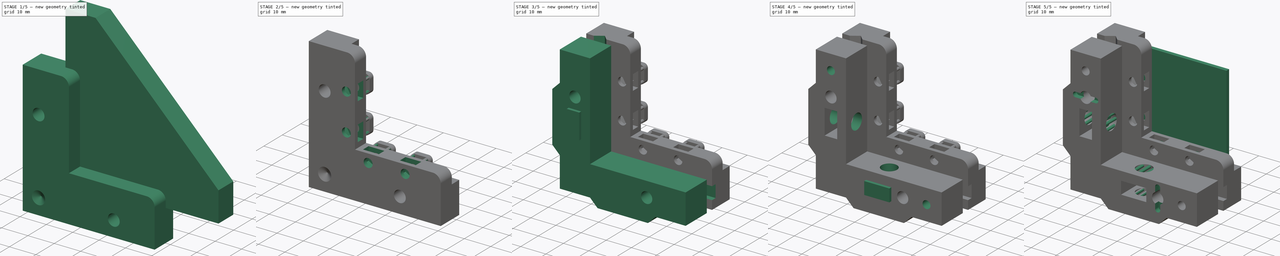
[diagram: build sequence overview — one tinted view per stage of 5, left to right]
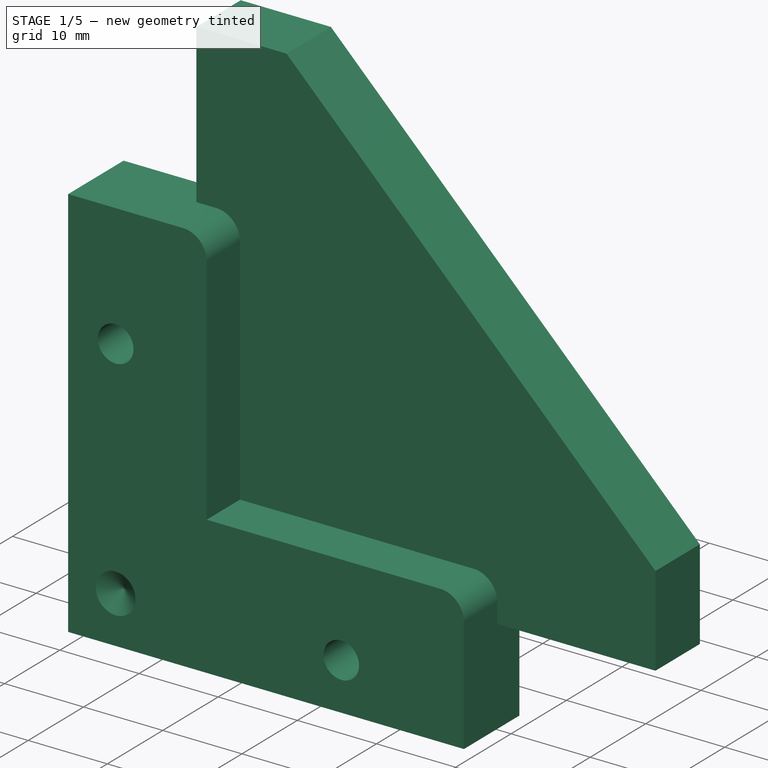
[diagram: stage 1 of 5 — iso view after this stage's code; geometry added in this stage tinted green]
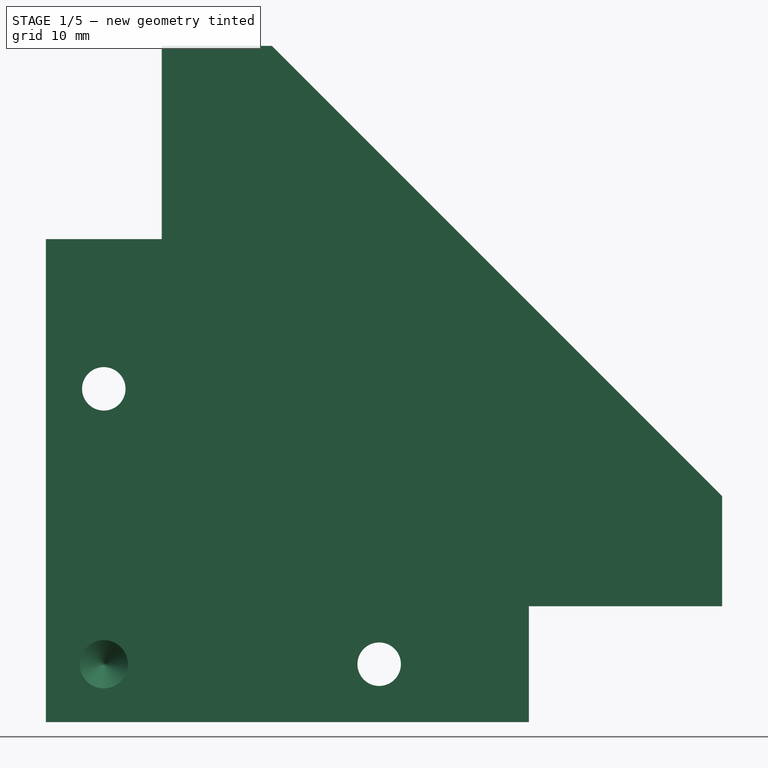
[diagram: stage 1 of 5 — front view after this stage's code; geometry added in this stage tinted green]
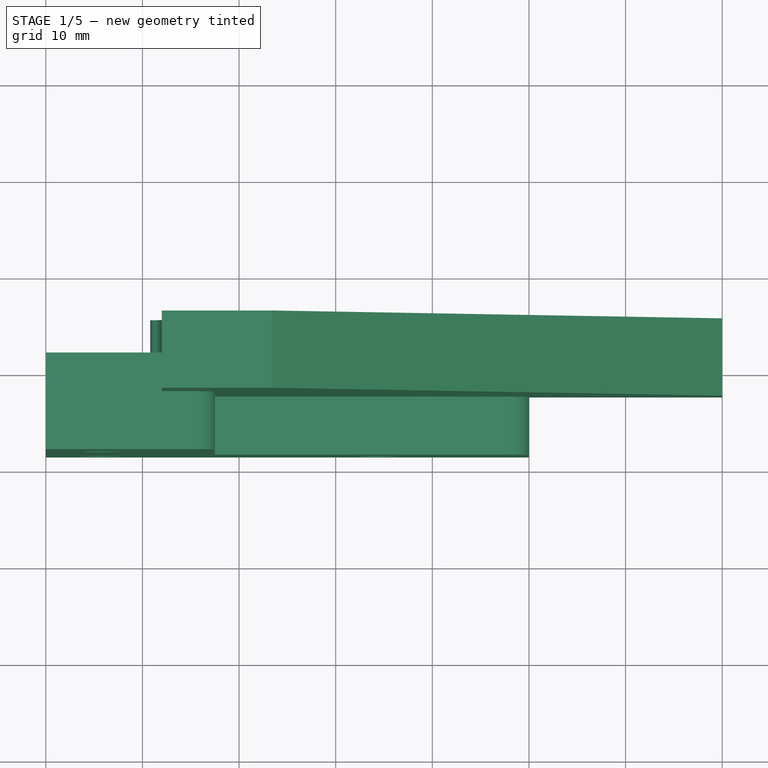
[diagram: stage 1 of 5 — top view after this stage's code; geometry added in this stage tinted green]
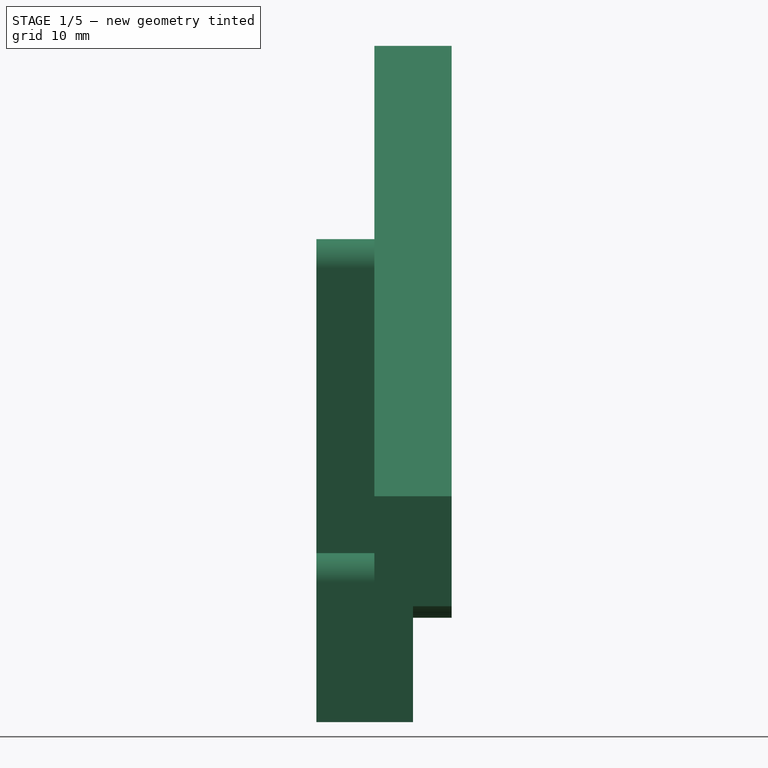
[diagram: stage 1 of 5 — right view after this stage's code; geometry added in this stage tinted green]
FCSTD DOCUMENT  (FreeCAD 0.20R29410 (Git))
Label: KinematicMirrorMount-BGF
License: All rights reserved
LicenseURL: http://en.wikipedia.org/wiki/All_rights_reserved
objects: Sketcher::SketchObject×22, PartDesign::Pad×10, PartDesign::Pocket×10, PartDesign::Body×7, Part::Part2DObjectPython×4, PartDesign::Boolean×4, PartDesign::Plane×3, Spreadsheet::Sheet×1, PartDesign::SubtractiveBox×1, PartDesign::Hole×1
note: 84 computed .brp shape members not serialized (recipe doc carries the construction recipe); baked Part::Feature solids carry a one-line shape summary decoded from their .brp

FEATURE [PartDesign::Body] Body001  label="OpticPlaceholderBody"
  Group = -> [Sketch002,Clone2D001,Pad001]
  Origin = -> Origin001
  Tip = -> Pad001
FEATURE [PartDesign::Plane] DatumPlane001  label="TiltPlateDatumPlane"
  AttachmentOffset = pos=(0,0,-1.5) rot=(0,0,1;0rad)
  Length = 100
  MapMode = 5
  Placement = pos=(0,1.5,3e-16) rot=(1,0,0;1.5708rad)
  ResizeMode = 1
  Support = -> [XZ_Plane002]
  Width = 100
  expr: .AttachmentOffset.Base.z = -Spreadsheet.partoffset
FEATURE [Part::Part2DObjectPython] Clone2D002  label="MasterSketch (2D)002"  # Draft 2D object (typed FeaturePython)
  Fuse = false
  Objects = -> [Sketch]
  Placement = pos=(0,0,0) rot=(1,0,0;1.5708rad)
  Scale = (1,1,1)
FEATURE [Sketcher::SketchObject] Sketch003  label="TiltPlateSketch"
  ExternalGeometry = -> [Clone2D002]
  FullyConstrained = true
  MapMode = 5
  Placement = pos=(0,1.5,3e-16) rot=(1,0,0;1.5708rad)
  Support = -> [DatumPlane001]
  expr: Constraints[10] = Spreadsheet.basearmheight + Spreadsheet.opticsupportheight
  expr: Constraints[25] = Spreadsheet.filletradiuslarge
  sketch-geometry (11):
    g0: LineSegment StartX=0 StartY=0 StartZ=0 EndX=50 EndY=0 EndZ=0
    g1: LineSegment StartX=50 StartY=0 StartZ=0 EndX=50 EndY=14.5 EndZ=0
    g2: LineSegment StartX=47 StartY=17.5 StartZ=0 EndX=17.5 EndY=17.5 EndZ=0
    g3: LineSegment StartX=17.5 StartY=17.5 StartZ=0 EndX=17.5 EndY=47 EndZ=0
    g4: LineSegment StartX=14.5 StartY=50 StartZ=0 EndX=0 EndY=50 EndZ=0
    g5: LineSegment StartX=0 StartY=50 StartZ=0 EndX=0 EndY=0 EndZ=0
    g6: LineSegment StartX=0 StartY=0 StartZ=0 EndX=59.6297 EndY=59.6297 EndZ=0
    g7: ArcOfCircle CenterX=47 CenterY=14.5 CenterZ=0 NormalX=0 NormalY=0 NormalZ=1 AngleXU=0 Radius=3 StartAngle=0 EndAngle=1.5708
    g8: GeomPoint X=50 Y=17.5 Z=0
    g9: ArcOfCircle CenterX=14.5 CenterY=47 CenterZ=0 NormalX=0 NormalY=0 NormalZ=1 AngleXU=0 Radius=3 StartAngle=6e-16 EndAngle=1.5708
    g10: GeomPoint X=17.5 Y=50 Z=0
  constraints (26):
    c: Coincident(g0,g1)
    c: Vertical(g1)
    c: Horizontal(g2)
    c: Vertical(g3)
    c: Horizontal(g4)
    c: Coincident(g4,g5)
    c: Vertical(g5)
    c: Coincident(g0,g5)
    c: Coincident(g0,g-1)
    c: Coincident(g3,g2)
    c: Distance(g1,g8) = 17.5
    c: Coincident(g-6,g0)
    c: Coincident(g6,g0)
    c: Angle(g-1,g6) = 0.785398
    c: Block(g6)
    c: Symmetric(g8,g10,g6)
    c: PointOnObject(g8,g1)
    c: PointOnObject(g8,g2)
    c: Tangent(g1,g7) = -1.5708
    c: Tangent(g2,g7) = -1.5708
    c: PointOnObject(g10,g3)
    c: PointOnObject(g10,g4)
    c: Tangent(g3,g9) = -1.5708
    c: Tangent(g4,g9) = -1.5708
    c: Equal(g9,g7)
    c: Radius(g9) = 3
FEATURE [PartDesign::Pad] Pad002
  Direction = (0,-1,-2e-16)
  Length = 10
  Length2 = 10
  Placement = pos=(0,1.5,3e-16) rot=(1,0,0;1.5708rad)
  Profile = -> Sketch003
  ReferenceAxis = -> Sketch003 [N_Axis]
  Refine = true
  Reversed = true
  Type = 0
FEATURE [Sketcher::SketchObject] Sketch005  label="SpringHolesSketch001"
  ExternalGeometry = -> [Clone2D002]
  FullyConstrained = true
  MapMode = 5
  Placement = pos=(0,1.5,3e-16) rot=(1,0,0;1.5708rad)
  Support = -> [DatumPlane001]
  expr: Constraints[3] = Spreadsheet.springholediameter
  sketch-geometry (2):
    g0: Circle CenterX=34.5 CenterY=6 CenterZ=0 NormalX=0 NormalY=0 NormalZ=1 AngleXU=0 Radius=2.25
    g1: Circle CenterX=6 CenterY=34.5 CenterZ=0 NormalX=0 NormalY=0 NormalZ=1 AngleXU=0 Radius=2.25
  constraints (4):
    c: Coincident(g0,g-3)
    c: Coincident(g1,g-4)
    c: Equal(g1,g0)
    c: Diameter(g0) = 4.5
FEATURE [PartDesign::Pocket] Pocket001  label="SpringHolesPocket001"
  BaseFeature = -> Pad002
  Direction = (0,1,2e-16)
  Length = 5
  Length2 = 5
  Placement = pos=(0,1.5,3e-16) rot=(1,0,0;1.5708rad)
  Profile = -> Sketch005
  ReferenceAxis = -> Sketch005 [N_Axis]
  Refine = true
  Type = 1
FEATURE [PartDesign::Plane] DatumPlane002  label="OpticChanneDatumPlane"
  AttachmentOffset = pos=(0,0,-8) rot=(0,0,1;0rad)
  Length = 90
  MapMode = 5
  Placement = pos=(0,9.5,2.1e-15) rot=(1,0,0;1.5708rad)
  ResizeMode = 0
  Support = -> [DatumPlane001]
  Width = 90
  expr: .AttachmentOffset.Base.z = -Spreadsheet.opticchanneloffset - Spreadsheet.opticchanneldepth
FEATURE [PartDesign::SubtractiveBox] Box  label="OpticChannelCutBox"
  AttacherType = Attacher::AttachEngine3D
  AttachmentOffset = pos=(12,12,0) rot=(0,0,1;0rad)
  BaseFeature = -> Pocket001
  Height = 2
  Length = 50
  MapMode = 5
  Placement = pos=(12,9.5,12) rot=(1,0,0;1.5708rad)
  Refine = true
  Support = -> [DatumPlane002]
  Width = 50
  expr: .AttachmentOffset.Base.x = Spreadsheet.basearmheight
  expr: .AttachmentOffset.Base.y = Spreadsheet.basearmheight
  expr: Height = Spreadsheet.opticchanneldepth
  expr: Length = Spreadsheet.basearmlength
  expr: Width = Spreadsheet.basearmlength
FEATURE [Sketcher::SketchObject] Sketch008  label="PivotPocketSketch"
  ExternalGeometry = -> [Clone2D002]
  FullyConstrained = true
  MapMode = 5
  Placement = pos=(0,1.5,3e-16) rot=(1,0,0;1.5708rad)
  Support = -> [DatumPlane001]
  sketch-geometry (1):
    g0: Circle CenterX=6 CenterY=6 CenterZ=0 NormalX=0 NormalY=0 NormalZ=1 AngleXU=0 Radius=2.5
  constraints (2):
    c: Coincident(g0,g-5)
    c: Diameter(g0) = 5
FEATURE [PartDesign::Pocket] Pocket004  label="PivotPocket"
  BaseFeature = -> Box
  Direction = (0,1,2e-16)
  Length = 1.5
  Length2 = 5
  Placement = pos=(12,9.5,12) rot=(1,0,0;1.5708rad)
  Profile = -> Sketch008
  ReferenceAxis = -> Sketch008 [N_Axis]
  Refine = true
  TaperAngle = -58
  Type = 0
FEATURE [PartDesign::Body] Body004  label="MountNutCaptureCut2Body"
  Group = -> [Sketch011,Pad004]
  Origin = -> Origin004
  Tip = -> Pad004
FEATURE [Part::Part2DObjectPython] Clone2D004  label="MasterSketch (2D)004"  # Draft 2D object (typed FeaturePython)
  Fuse = false
  Objects = -> [Sketch]
  Placement = pos=(0,0,0) rot=(1,0,0;1.5708rad)
  Scale = (1,1,1)
FEATURE [Sketcher::SketchObject] Sketch013  label="SetscrewBackplateCutSketch"
  AttachmentOffset = pos=(0,0,-11.5) rot=(0,0,1;0rad)
  ExternalGeometry = -> [Clone2D004]
  FullyConstrained = true
  MapMode = 5
  Placement = pos=(0,11.5,2.6e-15) rot=(1,0,0;1.5708rad)
  Support = -> [XZ_Plane006]
  expr: .AttachmentOffset.Base.z = -Spreadsheet.partoffset - Spreadsheet.tiltplatedepth
  expr: Constraints[38] = Spreadsheet.setscrewbackplatedim
  expr: Constraints[39] = Spreadsheet.setscrewbackplatedim
  expr: Constraints[3] = Spreadsheet.basearmheight + Spreadsheet.opticsupportheight
  expr: Constraints[40] = Spreadsheet.setscrewbackplatedim
  expr: Constraints[41] = Spreadsheet.setscrewbackplatedim
  expr: Constraints[88] = Spreadsheet.filletradiussmall
  sketch-geometry (59):
    g0: LineSegment StartX=100 StartY=17.5 StartZ=0 EndX=0 EndY=17.5 EndZ=0
    g1: LineSegment StartX=-4.32614 StartY=-4.32614 StartZ=0 EndX=-5.95094 EndY=-5.95094 EndZ=0
    g2: LineSegment StartX=17.5 StartY=100 StartZ=0 EndX=17.5 EndY=0 EndZ=0
    g3: LineSegment StartX=19 StartY=13.5 StartZ=0 EndX=19 EndY=16 EndZ=0
    g4: LineSegment StartX=20.5 StartY=17.5 StartZ=0 EndX=24.5 EndY=17.5 EndZ=0
    g5: LineSegment StartX=26 StartY=16 StartZ=0 EndX=26 EndY=13.5 EndZ=0
    g6: LineSegment StartX=27.5 StartY=12 StartZ=0 EndX=31.5 EndY=12 EndZ=0
    g7: LineSegment StartX=33 StartY=13.5 StartZ=0 EndX=33 EndY=16 EndZ=0
    g8: LineSegment StartX=34.5 StartY=17.5 StartZ=0 EndX=38.5 EndY=17.5 EndZ=0
    g9: LineSegment StartX=40 StartY=16 StartZ=0 EndX=40 EndY=13.5 EndZ=0
    g10: LineSegment StartX=41.5 StartY=12 StartZ=0 EndX=70 EndY=12 EndZ=0
    g11: LineSegment StartX=70 StartY=12 StartZ=0 EndX=70 EndY=23.3875 EndZ=0
    g12: LineSegment StartX=70 StartY=23.3875 StartZ=0 EndX=23.3875 EndY=70 EndZ=0
    g13: LineSegment StartX=23.3875 StartY=70 StartZ=0 EndX=12 EndY=70 EndZ=0
    g14: LineSegment StartX=12 StartY=70 StartZ=0 EndX=12 EndY=41.5 EndZ=0
    g15: LineSegment StartX=13.5 StartY=40 StartZ=0 EndX=16 EndY=40 EndZ=0
    g16: LineSegment StartX=17.5 StartY=38.5 StartZ=0 EndX=17.5 EndY=34.5 EndZ=0
    g17: LineSegment StartX=16 StartY=33 StartZ=0 EndX=13.5 EndY=33 EndZ=0
    g18: LineSegment StartX=12 StartY=31.5 StartZ=0 EndX=12 EndY=27.5 EndZ=0
    g19: LineSegment StartX=13.5 StartY=26 StartZ=0 EndX=16 EndY=26 EndZ=0
    g20: LineSegment StartX=17.5 StartY=24.5 StartZ=0 EndX=17.5 EndY=20.5 EndZ=0
    g21: LineSegment StartX=16 StartY=19 StartZ=0 EndX=13.5 EndY=19 EndZ=0
    g22: ArcOfCircle CenterX=16 CenterY=38.5 CenterZ=0 NormalX=0 NormalY=0 NormalZ=1 AngleXU=0 Radius=1.5 StartAngle=2.2e-15 EndAngle=1.5708
    g23: GeomPoint X=17.5 Y=40 Z=0
    g24: ArcOfCircle CenterX=16 CenterY=34.5 CenterZ=0 NormalX=0 NormalY=0 NormalZ=1 AngleXU=0 Radius=1.5 StartAngle=4.71239 EndAngle=6.28319
    g25: GeomPoint X=17.5 Y=33 Z=0
    g26: ArcOfCircle CenterX=16 CenterY=24.5 CenterZ=0 NormalX=0 NormalY=0 NormalZ=1 AngleXU=0 Radius=1.5 StartAngle=-9e-16 EndAngle=1.5708
    g27: GeomPoint X=17.5 Y=26 Z=0
    g28: ArcOfCircle CenterX=16 CenterY=20.5 CenterZ=0 NormalX=0 NormalY=0 NormalZ=1 AngleXU=0 Radius=1.5 StartAngle=4.71239 EndAngle=6.28319
    g29: GeomPoint X=17.5 Y=19 Z=0
    g30: ArcOfCircle CenterX=20.5 CenterY=16 CenterZ=0 NormalX=0 NormalY=0 NormalZ=1 AngleXU=0 Radius=1.5 StartAngle=1.5708 EndAngle=3.14159
    g31: GeomPoint X=19 Y=17.5 Z=0
    g32: ArcOfCircle CenterX=24.5 CenterY=16 CenterZ=0 NormalX=0 NormalY=0 NormalZ=1 AngleXU=0 Radius=1.5 StartAngle=0 EndAngle=1.5708
    g33: GeomPoint X=26 Y=17.5 Z=0
    g34: ArcOfCircle CenterX=34.5 CenterY=16 CenterZ=0 NormalX=0 NormalY=0 NormalZ=1 AngleXU=0 Radius=1.5 StartAngle=1.5708 EndAngle=3.14159
    g35: GeomPoint X=33 Y=17.5 Z=0
    g36: ArcOfCircle CenterX=38.5 CenterY=16 CenterZ=0 NormalX=0 NormalY=0 NormalZ=1 AngleXU=0 Radius=1.5 StartAngle=0 EndAngle=1.5708
    g37: GeomPoint X=40 Y=17.5 Z=0
    g38: ArcOfCircle CenterX=13.5 CenterY=41.5 CenterZ=0 NormalX=0 NormalY=0 NormalZ=1 AngleXU=0 Radius=1.5 StartAngle=3.14159 EndAngle=4.71239
    g39: GeomPoint X=12 Y=40 Z=0
    g40: ArcOfCircle CenterX=13.5 CenterY=31.5 CenterZ=0 NormalX=0 NormalY=0 NormalZ=1 AngleXU=0 Radius=1.5 StartAngle=1.5708 EndAngle=3.14159
    g41: GeomPoint X=12 Y=33 Z=0
    g42: ArcOfCircle CenterX=13.5 CenterY=27.5 CenterZ=0 NormalX=0 NormalY=0 NormalZ=1 AngleXU=0 Radius=1.5 StartAngle=3.14159 EndAngle=4.71239
    g43: GeomPoint X=12 Y=26 Z=0
    g44: ArcOfCircle CenterX=13.5 CenterY=17.5 CenterZ=0 NormalX=0 NormalY=0 NormalZ=1 AngleXU=0 Radius=1.5 StartAngle=1.5708 EndAngle=3.14159
    g45: GeomPoint X=12 Y=19 Z=0
    g46: ArcOfCircle CenterX=17.5 CenterY=13.5 CenterZ=0 NormalX=0 NormalY=0 NormalZ=1 AngleXU=0 Radius=1.5 StartAngle=4.71239 EndAngle=6.28319
    g47: GeomPoint X=19 Y=12 Z=0
    g48: ArcOfCircle CenterX=27.5 CenterY=13.5 CenterZ=0 NormalX=0 NormalY=0 NormalZ=1 AngleXU=0 Radius=1.5 StartAngle=3.14159 EndAngle=4.71239
    g49: GeomPoint X=26 Y=12 Z=0
    g50: ArcOfCircle CenterX=31.5 CenterY=13.5 CenterZ=0 NormalX=0 NormalY=0 NormalZ=1 AngleXU=0 Radius=1.5 StartAngle=4.71239 EndAngle=6.28319
    g51: GeomPoint X=33 Y=12 Z=0
    g52: ArcOfCircle CenterX=41.5 CenterY=13.5 CenterZ=0 NormalX=0 NormalY=0 NormalZ=1 AngleXU=0 Radius=1.5 StartAngle=3.14159 EndAngle=4.71239
    g53: GeomPoint X=40 Y=12 Z=0
    g54: LineSegment StartX=12 StartY=17.5 StartZ=0 EndX=12 EndY=13.5 EndZ=0
    g55: ArcOfCircle CenterX=10.5749 CenterY=13.5 CenterZ=0 NormalX=0 NormalY=0 NormalZ=1 AngleXU=0 Radius=1.42507 StartAngle=5.18322 EndAngle=6.28319
    g56: ArcOfCircle CenterX=11.5616 CenterY=11.5616 CenterZ=0 NormalX=0 NormalY=0 NormalZ=1 AngleXU=0 Radius=0.75 StartAngle=2.04162 EndAngle=5.81236
    g57: ArcOfCircle CenterX=13.5 CenterY=10.5749 CenterZ=0 NormalX=0 NormalY=0 NormalZ=1 AngleXU=0 Radius=1.42507 StartAngle=1.5708 EndAngle=2.67077
    g58: LineSegment StartX=13.5 StartY=12 StartZ=0 EndX=17.5 EndY=12 EndZ=0
  constraints (142):
    c: Horizontal(g0)
    c: PointOnObject(g-1,g1)
    c: Block(g1)
    c: DistanceY(g-1,g0) = 17.5
    c: Distance(g0) = 100
    c: PointOnObject(g0,g-2)
    c: PointOnObject(g2,g-1)
    c: Vertical(g2)
    c: Symmetric(g2,g0,g1)
    c: PointOnObject(g47,g-3)
    c: PointOnObject(g31,g0)
    c: Vertical(g3)
    c: PointOnObject(g33,g0)
    c: PointOnObject(g49,g-3)
    c: Vertical(g5)
    c: PointOnObject(g51,g-3)
    c: PointOnObject(g35,g0)
    c: Vertical(g7)
    c: PointOnObject(g37,g0)
    c: PointOnObject(g53,g-3)
    c: Vertical(g9)
    c: Horizontal(g10)
    c: Coincident(g10,g11)
    c: Vertical(g11)
    c: Coincident(g11,g12)
    c: Coincident(g12,g13)
    c: Horizontal(g13)
    c: Coincident(g13,g14)
    c: PointOnObject(g39,g-4)
    c: Vertical(g14)
    c: PointOnObject(g23,g2)
    c: Horizontal(g15)
    c: PointOnObject(g41,g-4)
    c: Horizontal(g17)
    c: PointOnObject(g43,g-4)
    c: Horizontal(g19)
    c: PointOnObject(g45,g-4)
    c: Horizontal(g21)
    c: Distance(g-4,g47) = 7
    c: Distance(g47,g49) = 7
    c: Distance(g49,g51) = 7
    c: Distance(g51,g53) = 7
    c: Symmetric(g31,g29,g1)
    c: Symmetric(g33,g27,g1)
    c: Symmetric(g35,g25,g1)
    c: Symmetric(g37,g23,g1)
    c: Distance(g10,g53) = 30
    c: Equal(g11,g13)
    c: Distance(g12) = 65.92
    c: PointOnObject(g23,g15)
    c: PointOnObject(g23,g16)
    c: Tangent(g15,g22) = 1.5708
    c: Tangent(g16,g22) = 1.5708
    c: PointOnObject(g25,g16)
    c: PointOnObject(g25,g17)
    c: Tangent(g16,g24) = 1.5708
    c: Tangent(g17,g24) = 1.5708
    c: PointOnObject(g27,g19)
    c: PointOnObject(g27,g20)
    c: Tangent(g19,g26) = 1.5708
    c: Tangent(g20,g26) = 1.5708
    c: PointOnObject(g29,g20)
    c: PointOnObject(g29,g21)
    c: Tangent(g20,g28) = 1.5708
    c: Tangent(g21,g28) = 1.5708
    c: PointOnObject(g31,g3)
    c: PointOnObject(g31,g4)
    c: Tangent(g3,g30) = 1.5708
    c: Tangent(g4,g30) = 1.5708
    c: PointOnObject(g33,g4)
    c: PointOnObject(g33,g5)
    c: Tangent(g4,g32) = 1.5708
    c: Tangent(g5,g32) = 1.5708
    c: PointOnObject(g35,g7)
    c: PointOnObject(g35,g8)
    c: Tangent(g7,g34) = 1.5708
    c: Tangent(g8,g34) = 1.5708
    c: PointOnObject(g37,g8)
    c: PointOnObject(g37,g9)
    c: Tangent(g8,g36) = 1.5708
    c: Tangent(g9,g36) = 1.5708
    c: Equal(g36,g34)
    c: Equal(g34,g32)
    c: Equal(g32,g30)
    c: Equal(g30,g28)
    c: Equal(g28,g26)
    c: Equal(g26,g24)
    c: Equal(g24,g22)
    c: Radius(g36) = 1.5
    c: PointOnObject(g39,g14)
    c: PointOnObject(g39,g15)
    c: Tangent(g14,g38) = -1.5708
    c: Tangent(g15,g38) = -1.5708
    c: PointOnObject(g41,g17)
    c: PointOnObject(g41,g18)
    c: Tangent(g17,g40) = -1.5708
    c: Tangent(g18,g40) = -1.5708
    c: PointOnObject(g43,g18)
    c: PointOnObject(g43,g19)
    c: Tangent(g18,g42) = -1.5708
    c: Tangent(g19,g42) = -1.5708
    c: PointOnObject(g45,g21)
    c: Tangent(g21,g44) = -1.5708
    c: PointOnObject(g47,g3)
    c: Tangent(g3,g46) = -1.5708
    c: PointOnObject(g49,g5)
    c: PointOnObject(g49,g6)
    c: Tangent(g5,g48) = -1.5708
    c: Tangent(g6,g48) = -1.5708
    c: PointOnObject(g51,g7)
    c: PointOnObject(g51,g6)
    c: Tangent(g7,g50) = -1.5708
    c: Tangent(g6,g50) = -1.5708
    c: PointOnObject(g53,g9)
    c: PointOnObject(g53,g10)
    c: Tangent(g9,g52) = -1.5708
    c: Tangent(g10,g52) = -1.5708
    c: Equal(g38,g40)
    c: Equal(g40,g42)
    c: Equal(g42,g44)
    c: Equal(g44,g46)
    c: Equal(g46,g48)
    c: Equal(g48,g50)
    c: Equal(g50,g52)
    c: Equal(g52,g36)
    c: Equal(g10,g14)
    c: Tangent(g44,g54) = -1.5708
    c: Tangent(g54,g55) = 1.5708
    c: Tangent(g55,g56) = 1.5708
    c: Tangent(g56,g57) = 1.5708
    c: PointOnObject(g57,g-3)
    c: Coincident(g58,g46)
    c: Horizontal(g58)
    c: PointOnObject(g56,g1)
    c: PointOnObject(g54,g-4)
    c: Diameter(g56) = 1.5
    c: Tangent(g58,g57) = 1.5708
    c: Horizontal(g54,g3)
    c: Vertical(g57,g21)
    c: PointOnObject(g44,g-4)
    c: Horizontal(g5,g3)
    c: Distance(g-4,g56) = 0.62
FEATURE [PartDesign::Pad] Pad006
  Direction = (0,-1,-2e-16)
  Length = 8
  Length2 = 10
  Midplane = true
  Placement = pos=(0,0,0) rot=(1,0,0;1.5708rad)
  Profile = -> Sketch013
  ReferenceAxis = -> Sketch013 [N_Axis]
  Refine = true
  Type = 0
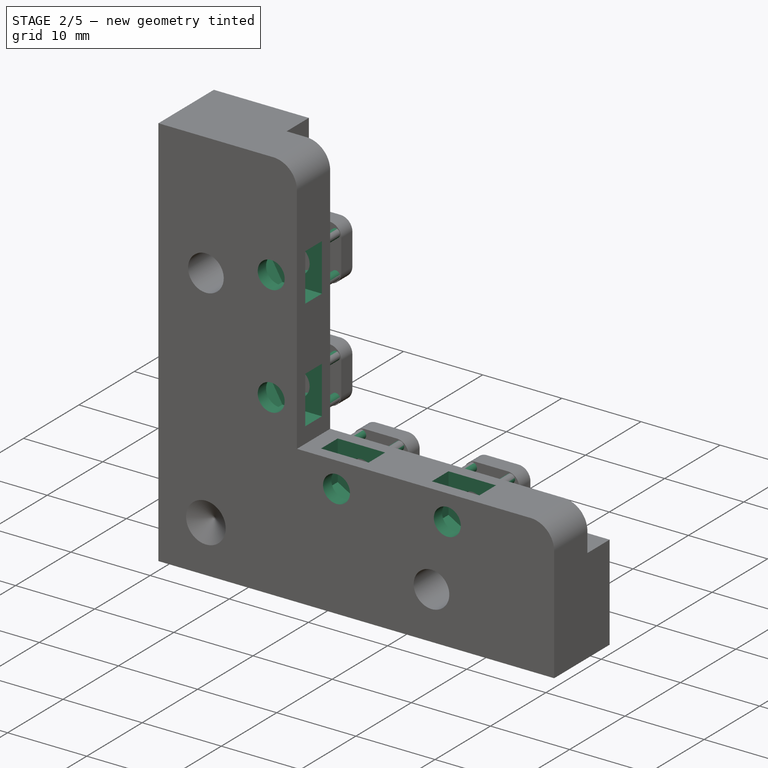
[diagram: stage 2 of 5 — iso view after this stage's code; geometry added in this stage tinted green]
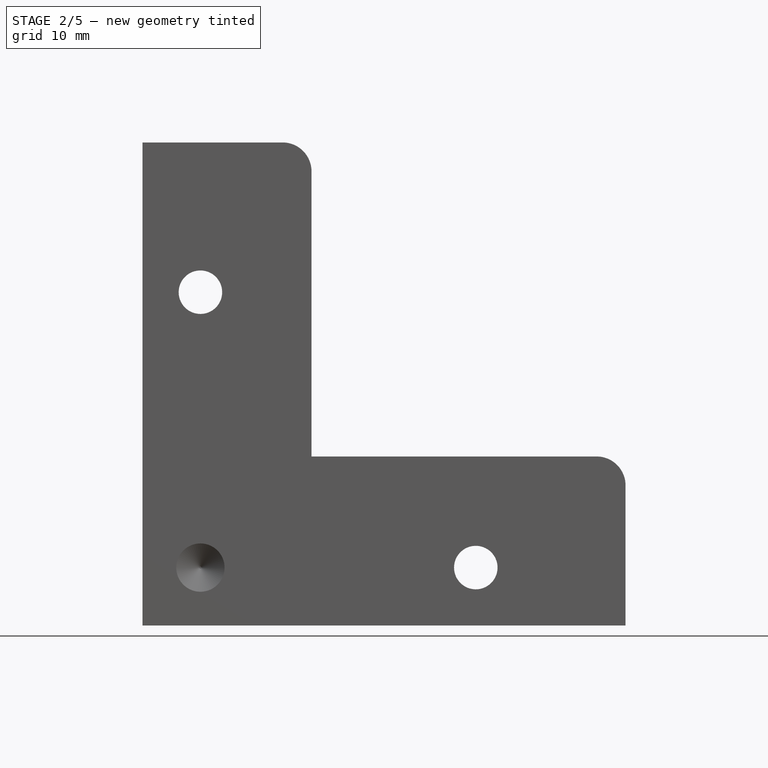
[diagram: stage 2 of 5 — front view after this stage's code; geometry added in this stage tinted green]
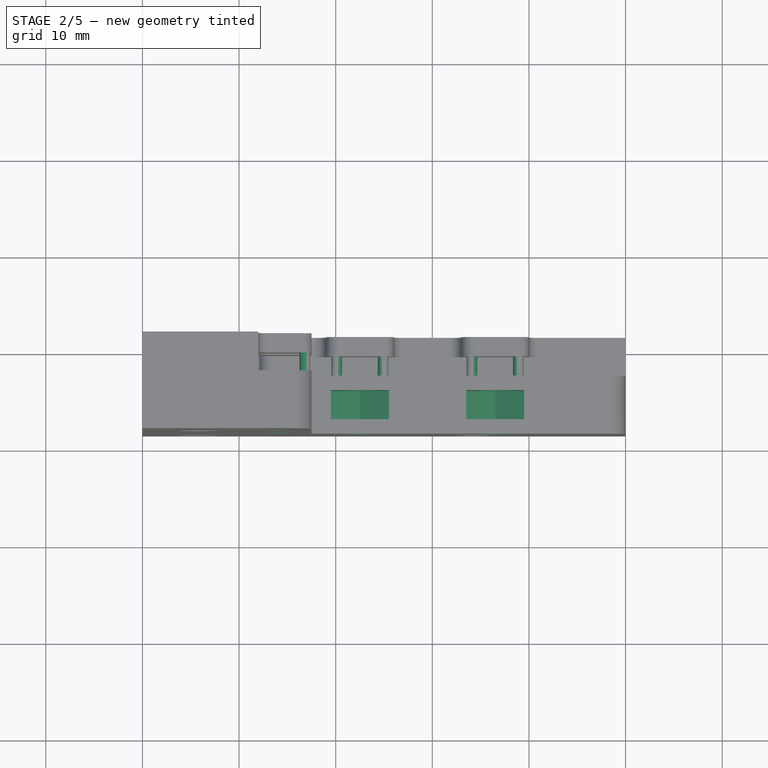
[diagram: stage 2 of 5 — top view after this stage's code; geometry added in this stage tinted green]
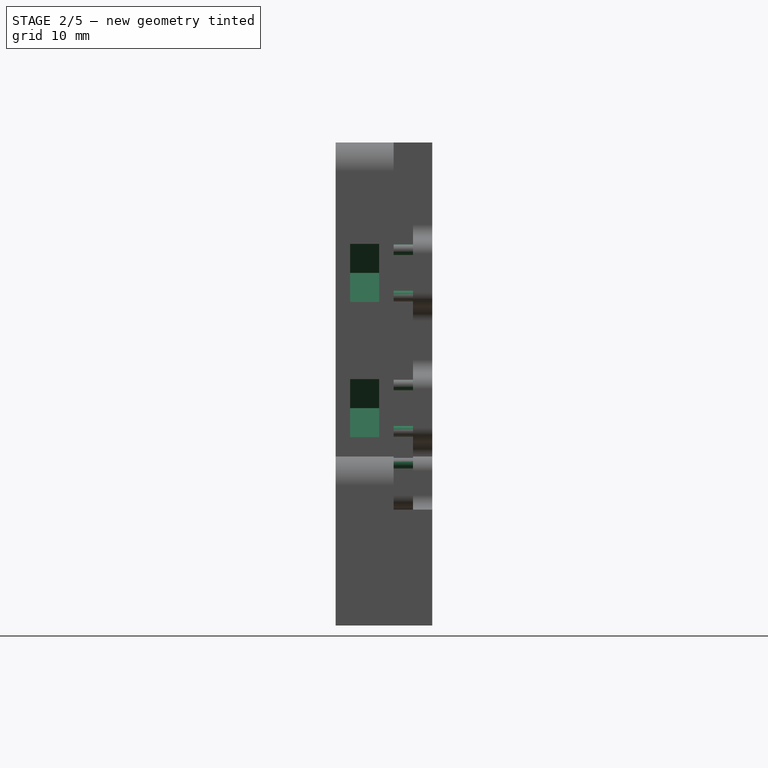
[diagram: stage 2 of 5 — right view after this stage's code; geometry added in this stage tinted green]
FEATURE [PartDesign::Body] Body006  label="SetscrewBackplateCutBody"
  Group = -> [Sketch013,Clone2D004,Pad006]
  Origin = -> Origin006
  Tip = -> Pad006
FEATURE [Sketcher::SketchObject] Sketch014
  AttachmentOffset = pos=(0,0,-4.5) rot=(0,0,1;0rad)
  FullyConstrained = true
  MapMode = 5
  Placement = pos=(0,4.5,1e-15) rot=(1,0,0;1.5708rad)
  Support = -> [XZ_Plane007]
  expr: .AttachmentOffset.Base.z = -Spreadsheet.partoffset - Spreadsheet.opticchanneloffset / 2
  expr: Constraints[1] = Spreadsheet.basearmheight + Spreadsheet.opticsupportheight / 2 - 0.5mm
  expr: Constraints[48] = Spreadsheet.basearmheight + Spreadsheet.setscrewbackplatedim * 1.5
  expr: Constraints[49] = Spreadsheet.basearmheight + Spreadsheet.setscrewbackplatedim * 3.5
  expr: Constraints[53] = Spreadsheet.setscrewnutwidth
  sketch-geometry (33):
    g0: LineSegment StartX=0 StartY=14.25 StartZ=0 EndX=60 EndY=14.25 EndZ=0
    g1: Circle CenterX=22.5 CenterY=14.25 CenterZ=0 NormalX=0 NormalY=0 NormalZ=1 AngleXU=0 Radius=3.4641
    g2: Circle CenterX=36.5 CenterY=14.25 CenterZ=0 NormalX=0 NormalY=0 NormalZ=1 AngleXU=0 Radius=3.4641
    g3: Circle CenterX=14.25 CenterY=22.5 CenterZ=0 NormalX=0 NormalY=0 NormalZ=1 AngleXU=0 Radius=3.4641
    g4: Circle CenterX=14.25 CenterY=36.5 CenterZ=0 NormalX=0 NormalY=0 NormalZ=1 AngleXU=0 Radius=3.4641
    g5: LineSegment StartX=0 StartY=0 StartZ=0 EndX=43.3435 EndY=43.3435 EndZ=0
    g6: LineSegment StartX=39.5 StartY=19.5 StartZ=0 EndX=39.5 EndY=12.5179 EndZ=0
    g7: LineSegment StartX=39.5 StartY=12.5179 StartZ=0 EndX=36.5 EndY=10.7859 EndZ=0
    g8: LineSegment StartX=36.5 StartY=10.7859 StartZ=0 EndX=33.5 EndY=12.5179 EndZ=0
    g9: LineSegment StartX=33.5 StartY=12.5179 StartZ=0 EndX=33.5 EndY=19.5 EndZ=0
    g10: LineSegment StartX=33.5 StartY=19.5 StartZ=0 EndX=25.5 EndY=19.5 EndZ=0
    g11: LineSegment StartX=25.5 StartY=19.5 StartZ=0 EndX=25.5 EndY=12.5179 EndZ=0
    g12: LineSegment StartX=25.5 StartY=12.5179 StartZ=0 EndX=22.5 EndY=10.7859 EndZ=0
    g13: LineSegment StartX=22.5 StartY=10.7859 StartZ=0 EndX=19.5 EndY=12.5179 EndZ=0
    g14: LineSegment StartX=19.5 StartY=12.5179 StartZ=0 EndX=19.5 EndY=19.5 EndZ=0
    g15: LineSegment StartX=19.5 StartY=19.5 StartZ=0 EndX=12.5179 EndY=19.5 EndZ=0
    g16: LineSegment StartX=12.5179 StartY=19.5 StartZ=0 EndX=10.7859 EndY=22.5 EndZ=0
    g17: LineSegment StartX=10.7859 StartY=22.5 StartZ=0 EndX=12.5179 EndY=25.5 EndZ=0
    g18: LineSegment StartX=12.5179 StartY=25.5 StartZ=0 EndX=19.5 EndY=25.5 EndZ=0
    g19: LineSegment StartX=19.5 StartY=25.5 StartZ=0 EndX=19.5 EndY=33.5 EndZ=0
    g20: LineSegment StartX=19.5 StartY=33.5 StartZ=0 EndX=12.5179 EndY=33.5 EndZ=0
    g21: LineSegment StartX=12.5179 StartY=33.5 StartZ=0 EndX=10.7859 EndY=36.5 EndZ=0
    g22: LineSegment StartX=10.7859 StartY=36.5 StartZ=0 EndX=12.5179 EndY=39.5 EndZ=0
    g23: LineSegment StartX=12.5179 StartY=39.5 StartZ=0 EndX=19.5 EndY=39.5 EndZ=0
    g24: LineSegment StartX=19.5 StartY=39.5 StartZ=0 EndX=39.5 EndY=19.5 EndZ=0
    g25: LineSegment StartX=39.18 StartY=12.7027 StartZ=0 EndX=39.18 EndY=15.7973 EndZ=0
    g26: LineSegment StartX=39.18 StartY=15.7973 StartZ=0 EndX=36.5 EndY=17.3446 EndZ=0
    g27: LineSegment StartX=36.5 StartY=17.3446 StartZ=0 EndX=33.82 EndY=15.7973 EndZ=0
    g28: LineSegment StartX=33.82 StartY=15.7973 StartZ=0 EndX=33.82 EndY=12.7027 EndZ=0
    g29: LineSegment StartX=33.82 StartY=12.7027 StartZ=0 EndX=36.5 EndY=11.1554 EndZ=0
    g30: LineSegment StartX=36.5 StartY=11.1554 StartZ=0 EndX=39.18 EndY=12.7027 EndZ=0
    g31: Circle CenterX=36.5 CenterY=14.25 CenterZ=0 NormalX=0 NormalY=0 NormalZ=1 AngleXU=0 Radius=3.0946
    g32: Circle CenterX=36.5 CenterY=14.25 CenterZ=0 NormalX=0 NormalY=0 NormalZ=1 AngleXU=0 Radius=1.55
  constraints (87):
    c: Horizontal(g0)
    c: DistanceY(g-1,g0) = 14.25
    c: PointOnObject(g0,g-2)
    c: PointOnObject(g1,g0)
    c: PointOnObject(g2,g0)
    c: Coincident(g5,g-1)
    c: Angle(g-1,g5) = 0.785398
    c: Block(g5)
    c: Equal(g4,g3)
    c: Equal(g3,g1)
    c: Equal(g1,g2)
    c: PointOnObject(g6,g2)
    c: Vertical(g6)
    c: Coincident(g6,g7)
    c: PointOnObject(g7,g2)
    c: Coincident(g7,g8)
    c: PointOnObject(g8,g2)
    c: Coincident(g8,g9)
    c: Vertical(g9)
    c: Coincident(g9,g10)
    c: Horizontal(g10)
    c: Coincident(g10,g11)
    c: PointOnObject(g11,g1)
    c: Vertical(g11)
    c: Coincident(g11,g12)
    c: PointOnObject(g12,g1)
    c: Coincident(g12,g13)
    c: PointOnObject(g13,g1)
    c: Coincident(g13,g14)
    c: Vertical(g14)
    c: PointOnObject(g15,g3)
    c: Horizontal(g15)
    c: Coincident(g15,g16)
    c: PointOnObject(g16,g3)
    c: Coincident(g16,g17)
    c: Coincident(g17,g18)
    c: Coincident(g18,g19)
    c: Vertical(g19)
    c: Coincident(g19,g20)
    c: PointOnObject(g20,g4)
    c: Horizontal(g20)
    c: Coincident(g20,g21)
    c: PointOnObject(g21,g4)
    c: Coincident(g21,g22)
    c: Coincident(g22,g23)
    c: Horizontal(g23)
    c: Coincident(g23,g24)
    c: Coincident(g24,g6)
    c: DistanceX(g0,g1) = 22.5
    c: DistanceX(g0,g2) = 36.5
    c: Angle(g7,g8) = 2.0944
    c: Vertical(g2,g7)
    c: Equal(g7,g8)
    c: DistanceX(g8,g6) = 6
    c: Horizontal(g7,g12)
    c: Horizontal(g8,g11)
    c: Horizontal(g11,g13)
    c: Symmetric(g13,g15,g5)
    c: Symmetric(g12,g16,g5)
    c: Symmetric(g11,g17,g5)
    c: Symmetric(g10,g18,g5)
    c: Symmetric(g8,g20,g5)
    c: Symmetric(g21,g7,g5)
    c: Symmetric(g6,g22,g5)
    c: Angle(g5,g24) = 1.5708
    c: Horizontal(g15,g10)
    c: Equal(g9,g6)
    c: Coincident(g15,g14)
    c: Distance(g0) = 60
    c: Coincident(g25,g26)
    c: Coincident(g26,g27)
    c: Coincident(g27,g28)
    c: Coincident(g28,g29)
    c: Coincident(g29,g30)
    c: Coincident(g30,g25)
    c: Equal(g25, g26-g30) x5
    c: PointOnObject(g25,g31)
    c: PointOnObject(g26,g31)
    c: PointOnObject(g27,g31)
    c: PointOnObject(g28,g31)
    c: PointOnObject(g29,g31)
    c: PointOnObject(g30,g31)
    c: Coincident(g31,g2)
    c: DistanceX(g28,g25) = 5.36
    c: Vertical(g25)
    c: Coincident(g32,g2)
    c: Diameter(g32) = 3.1
FEATURE [PartDesign::Pad] Pad007  label="SetscrewCaptureCutPad"
  Direction = (0,-1,-2e-16)
  Length = 3
  Length2 = 10
  Midplane = true
  Placement = pos=(0,0,0) rot=(1,0,0;1.5708rad)
  Profile = -> Sketch014
  ReferenceAxis = -> Sketch014 [N_Axis]
  Refine = true
  Type = 0
  expr: Length = Spreadsheet.setscrewnutheight
FEATURE [PartDesign::Boolean] Boolean003
  BaseFeature = -> Pocket004
  Group = -> [Body006]
  Refine = true
  Type = 1
FEATURE [PartDesign::Boolean] Boolean004
  BaseFeature = -> Boolean003
  Group = -> [Body007]
  Refine = true
  Type = 1
FEATURE [Sketcher::SketchObject] Sketch016  label="SetscrewHoleSketch"
  FullyConstrained = true
  MapMode = 5
  Placement = pos=(0,1.5,3e-16) rot=(1,0,0;1.5708rad)
  Support = -> [DatumPlane001]
  expr: Constraints[10] = Spreadsheet.basearmheight + Spreadsheet.setscrewbackplatedim * 1.5
  expr: Constraints[11] = Spreadsheet.basearmheight + Spreadsheet.setscrewbackplatedim * 3.5
  expr: Constraints[1] = Spreadsheet.basearmheight + Spreadsheet.opticsupportheight / 2 - 0.5mm
  sketch-geometry (6):
    g0: LineSegment StartX=60 StartY=14.25 StartZ=0 EndX=0 EndY=14.25 EndZ=0
    g1: LineSegment StartX=0 StartY=0 StartZ=0 EndX=43.3234 EndY=43.3234 EndZ=0
    g2: Circle CenterX=36.5 CenterY=14.25 CenterZ=0 NormalX=0 NormalY=0 NormalZ=1 AngleXU=0 Radius=1.55
    g3: Circle CenterX=22.5 CenterY=14.25 CenterZ=0 NormalX=0 NormalY=0 NormalZ=1 AngleXU=0 Radius=1.55
    g4: Circle CenterX=14.25 CenterY=22.5 CenterZ=0 NormalX=0 NormalY=0 NormalZ=1 AngleXU=0 Radius=1.55
    g5: Circle CenterX=14.25 CenterY=36.5 CenterZ=0 NormalX=0 NormalY=0 NormalZ=1 AngleXU=0 Radius=1.55
  constraints (17):
    c: Horizontal(g0)
    c: DistanceY(g-1,g0) = 14.25
    c: Coincident(g1,g-1)
    c: Angle(g-1,g1) = 0.785398
    c: Block(g1)
    c: PointOnObject(g2,g0)
    c: PointOnObject(g3,g0)
    c: Equal(g2,g3)
    c: Equal(g3,g4)
    c: Equal(g4,g5)
    c: DistanceX(g1,g3) = 22.5
    c: DistanceX(g1,g2) = 36.5
    c: Diameter(g2) = 3.1
    c: Symmetric(g3,g4,g1)
    c: Symmetric(g2,g5,g1)
    c: Vertical(g0,g1)
    c: Distance(g0) = 60
FEATURE [PartDesign::Hole] Hole  label="SetscrewHole"
  BaseFeature = -> Boolean004
  CustomThreadClearance = 0
  Depth = 6
  DepthType = 0
  Diameter = 3.4
  DrillForDepth = false
  DrillPoint = 1
  DrillPointAngle = 118
  HoleCutCountersinkAngle = 90
  HoleCutCustomValues = false
  HoleCutDepth = 0
  HoleCutDiameter = 6.1
  HoleCutType = 0
  ModelThread = false
  Profile = -> Sketch016
  Refine = true
  Tapered = false
  TaperedAngle = 90
  ThreadClass = 0
  ThreadDepth = 6
  ThreadDepthType = 0
  ThreadDirection = 0
  ThreadFit = 0
  ThreadSize = 9
  ThreadType = 1
  Threaded = false
  UseCustomThreadClearance = false
  expr: Depth = Spreadsheet.opticchanneloffset
FEATURE [Sketcher::SketchObject] Sketch017  label="SetscrewBackplateSupportSketch"
  AttachmentOffset = pos=(0,0,-10) rot=(0,0,1;0rad)
  FullyConstrained = true
  MapMode = 5
  Placement = pos=(0,11.5,2.6e-15) rot=(1,0,0;1.5708rad)
  Support = -> [DatumPlane001]
  expr: .AttachmentOffset.Base.z = -Spreadsheet.tiltplatedepth
  expr: Constraints[1] = Spreadsheet.basearmheight + Spreadsheet.opticsupportheight - 0.7mm
  expr: Constraints[26] = Spreadsheet.setscrewbackplatedim / 2 - 1.1mm
  expr: Constraints[27] = Spreadsheet.setscrewbackplatedim / 2 - 1.1mm
  expr: Constraints[3] = Spreadsheet.basearmheight + Spreadsheet.setscrewbackplatedim * 1.5
  expr: Constraints[4] = Spreadsheet.basearmheight + Spreadsheet.setscrewbackplatedim * 3.5
  sketch-geometry (12):
    g0: LineSegment StartX=0 StartY=16.8 StartZ=0 EndX=60 EndY=16.8 EndZ=0
    g1: LineSegment StartX=22.5 StartY=13.845 StartZ=0 EndX=22.5 EndY=19.755 EndZ=0
    g2: LineSegment StartX=36.5 StartY=13.845 StartZ=0 EndX=36.5 EndY=19.755 EndZ=0
    g3: Circle CenterX=38.9 CenterY=16.8 CenterZ=0 NormalX=0 NormalY=0 NormalZ=1 AngleXU=0 Radius=0.55
    g4: Circle CenterX=34.1 CenterY=16.8 CenterZ=0 NormalX=0 NormalY=0 NormalZ=1 AngleXU=0 Radius=0.55
    g5: Circle CenterX=24.9 CenterY=16.8 CenterZ=0 NormalX=0 NormalY=0 NormalZ=1 AngleXU=0 Radius=0.55
    g6: Circle CenterX=20.1 CenterY=16.8 CenterZ=0 NormalX=0 NormalY=0 NormalZ=1 AngleXU=0 Radius=0.55
    g7: Circle CenterX=16.8 CenterY=20.1 CenterZ=0 NormalX=0 NormalY=0 NormalZ=1 AngleXU=0 Radius=0.55
    g8: Circle CenterX=16.8 CenterY=24.9 CenterZ=0 NormalX=0 NormalY=0 NormalZ=1 AngleXU=0 Radius=0.55
    g9: Circle CenterX=16.8 CenterY=34.1 CenterZ=0 NormalX=0 NormalY=0 NormalZ=1 AngleXU=0 Radius=0.55
    g10: Circle CenterX=16.8 CenterY=38.9 CenterZ=0 NormalX=0 NormalY=0 NormalZ=1 AngleXU=0 Radius=0.55
    g11: LineSegment StartX=0 StartY=0 StartZ=0 EndX=41.4276 EndY=41.4276 EndZ=0
  constraints (32):
    c: Horizontal(g0)
    c: DistanceY(g-1,g0) = 16.8
    c: Vertical(g1)
    c: DistanceX(g-1,g1) = 22.5
    c: DistanceX(g-1,g2) = 36.5
    c: PointOnObject(g3,g0)
    c: PointOnObject(g5,g0)
    c: Symmetric(g4,g3,g2)
    c: Symmetric(g6,g5,g1)
    c: Equal(g10,g9)
    c: Equal(g9,g8)
    c: Equal(g8,g7)
    c: Equal(g7,g6)
    c: Equal(g6,g5)
    c: Equal(g5,g4)
    c: Equal(g4,g3)
    c: Vertical(g0,g-1)
    c: Distance(g0) = 60
    c: Coincident(g11,g-1)
    c: Angle(g-1,g11) = 0.785398
    c: Block(g11)
    c: Symmetric(g6,g7,g11)
    c: Symmetric(g5,g8,g11)
    c: Symmetric(g4,g9,g11)
    c: Symmetric(g3,g10,g11)
    c: Diameter(g3) = 1.1
    c: DistanceX(g2,g3) = 2.4
    c: DistanceX(g1,g5) = 2.4
    c: Equal(g1,g2)
    c: Horizontal(g1,g2)
    c: Distance(g2) = 5.91
    c: Symmetric(g2,g2,g0)
FEATURE [PartDesign::Pad] Pad009  label="SetscrewBackplateSupportPad"
  BaseFeature = -> Hole
  Direction = (0,-1,-2e-16)
  Length = 4
  Length2 = 10
  Profile = -> Sketch017
  ReferenceAxis = -> Sketch017 [N_Axis]
  Refine = true
  Type = 0
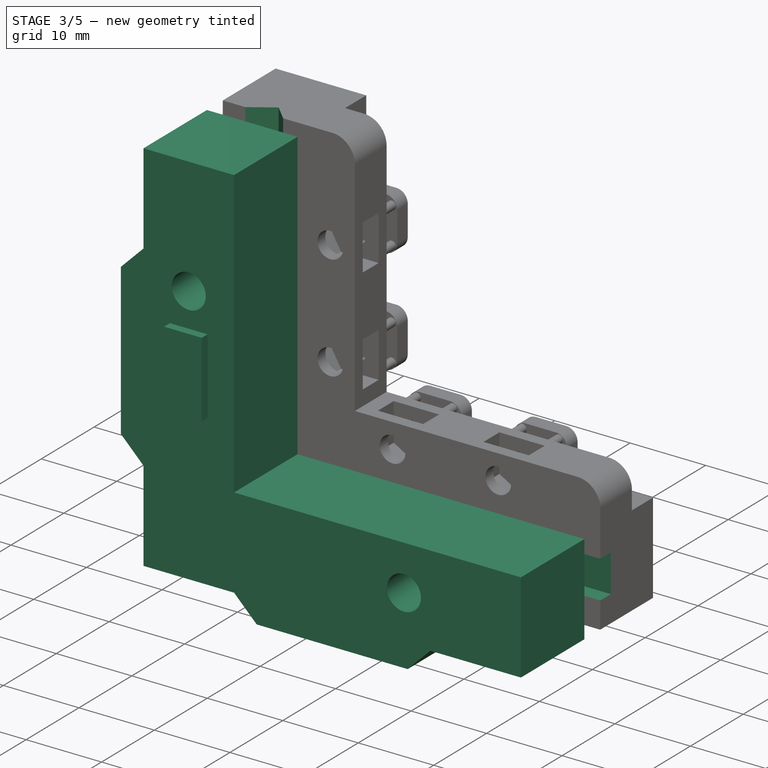
[diagram: stage 3 of 5 — iso view after this stage's code; geometry added in this stage tinted green]
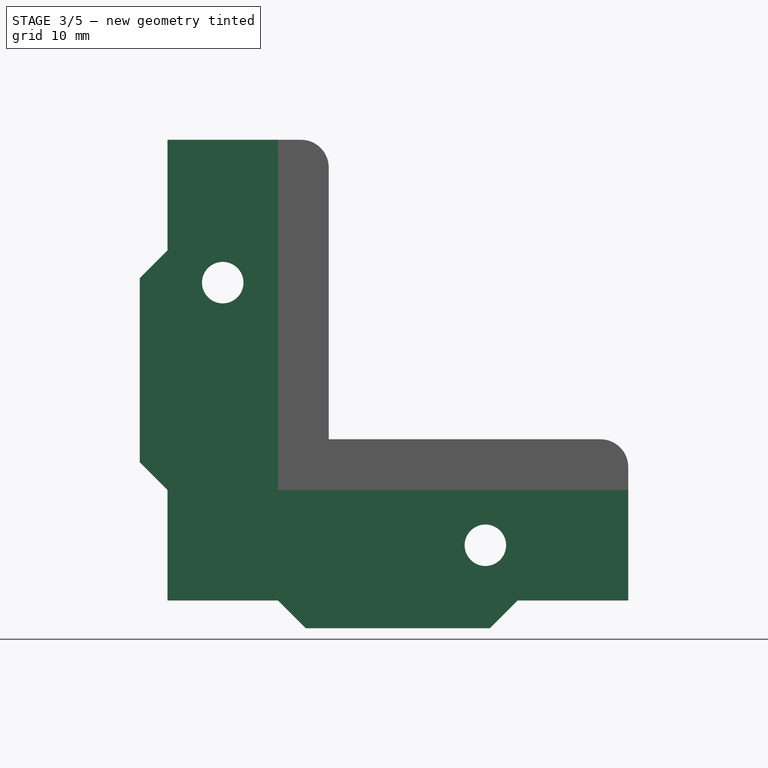
[diagram: stage 3 of 5 — front view after this stage's code; geometry added in this stage tinted green]
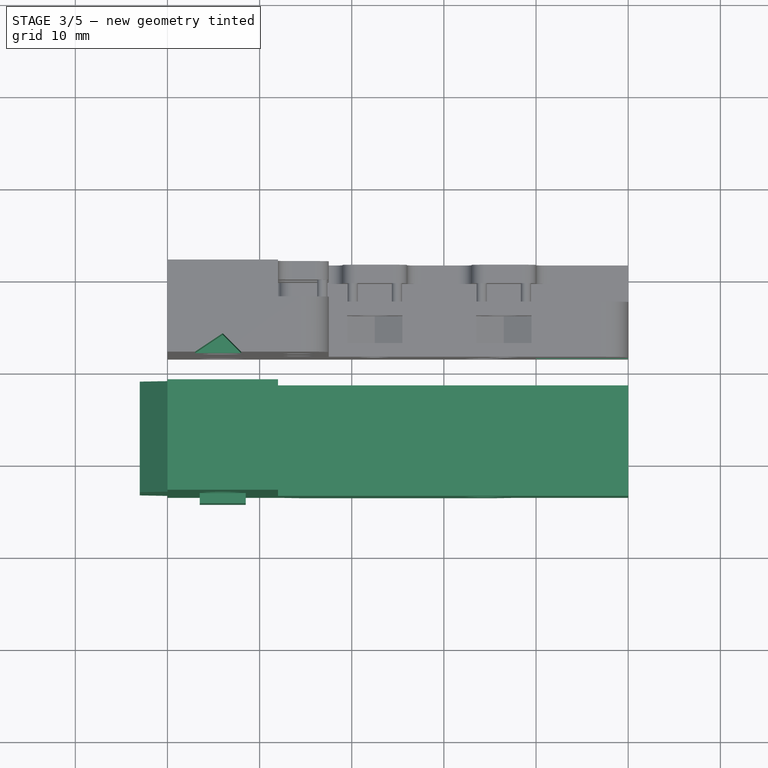
[diagram: stage 3 of 5 — top view after this stage's code; geometry added in this stage tinted green]
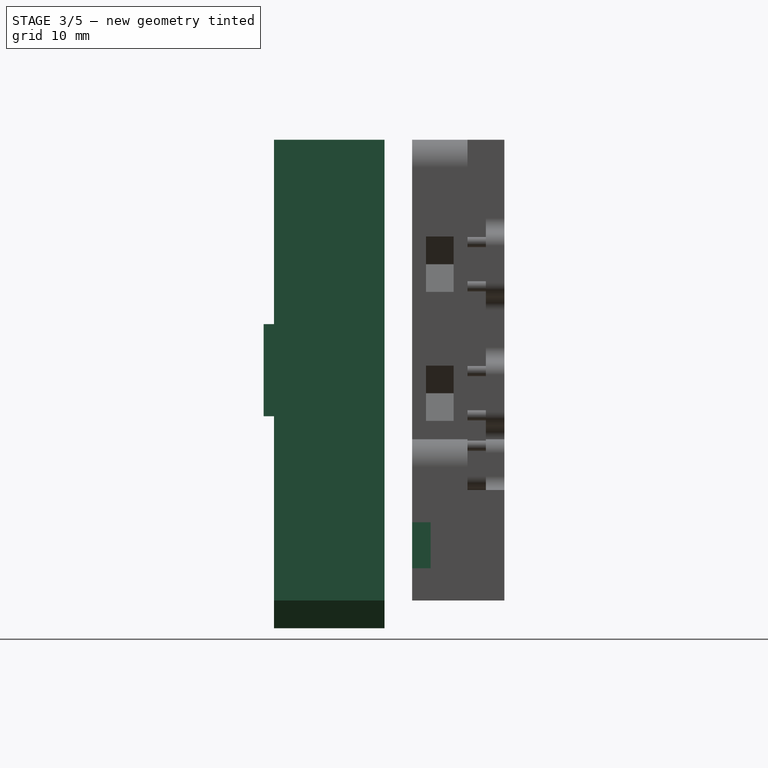
[diagram: stage 3 of 5 — right view after this stage's code; geometry added in this stage tinted green]
FEATURE [Spreadsheet::Sheet] Spreadsheet
  cells = A3=basearmlength; B3(basearmlength)==50mm; A4=basearmheight; B4(basearmheight)==12mm; A5=basearmdepth; B5(basearmdepth)==12mm; A6=springholeoffset; B6(springholeoffset)==basearmheight / 2 + (basearmlength - basearmheight) * 0.75; A7=springholediameter; B7(springholediameter)==4.5mm; A8=partoffset; B8(partoffset)==1.5mm; A9=footlength; B9(footlength)==20mm; A10=footheight; B10(footheight)==3mm; A11=basenutcapturewidth; B11(basenutcapturewidth)==10mm; A12=basenutcaptureheight; B12(basenutcaptureheight)==5mm; A13=opticdim1; B13(opticdim1)==20mm; A14=opticdim2; B14(opticdim2)==35mm; A15=opticsupportheight; B15(opticsupportheight)==5.5mm; A16=opticchanneloffset; B16(opticchanneloffset)==6mm; A17=opticchanneldepth; B17(opticchanneldepth)==2mm; A18=mountboltholediameter; B18(mountboltholediameter)==6.15mm; A19=thumbscrewholediameter; B19(thumbscrewholediameter)==3.15mm; A20=pivotpocketdiameter; B20(pivotpocketdiameter)==5mm; A21=setscrewbackplatedim; B21(setscrewbackplatedim)==7mm; A22=tiltplatedepth; B22(tiltplatedepth)==10mm; A23=setscrewholediameter; B23(setscrewholediameter)==3.1mm; A24=setscrewnutwidth; B24(setscrewnutwidth)==6mm; A25=setscrewnutheight; B25(setscrewnutheight)==3mm; A26=filletradiussmall; B26(filletradiussmall)==1.5mm; A27=filletradiuslarge; B27(filletradiuslarge)==3mm; A28=groovedepth; B28(groovedepth)==2mm; A29=groovelength; B29(groovelength)==10mm; A30=groovewidth; B30(groovewidth)==5mm; A31=flatdepth; B31(flatdepth)==2mm; A32=flatlength; B32(flatlength)==10mm; A33=flatwidth; B33(flatwidth)==5mm
FEATURE [Sketcher::SketchObject] Sketch  label="MasterSketch"
  FullyConstrained = false
  Placement = pos=(0,0,0) rot=(1,0,0;1.5708rad)
  expr: Constraints[12] = Spreadsheet.basearmlength
  expr: Constraints[13] = Spreadsheet.basearmheight
  expr: Constraints[21] = Spreadsheet.basearmlength / 2
  expr: Constraints[28] = Spreadsheet.basearmheight / 2
  expr: Constraints[30] = Spreadsheet.basearmheight / 2
  expr: Constraints[33] = Spreadsheet.springholeoffset
  expr: Constraints[42] = Spreadsheet.basenutcapturewidth
  expr: Constraints[43] = Spreadsheet.basenutcaptureheight
  expr: Constraints[61] = Spreadsheet.basearmheight / 2
  sketch-geometry (25):
    g0: LineSegment StartX=0 StartY=50 StartZ=0 EndX=0 EndY=0 EndZ=0
    g1: LineSegment StartX=0 StartY=0 StartZ=0 EndX=50 EndY=0 EndZ=0
    g2: LineSegment StartX=50 StartY=0 StartZ=0 EndX=50 EndY=12 EndZ=0
    g3: LineSegment StartX=50 StartY=12 StartZ=0 EndX=12 EndY=12 EndZ=0
    g4: LineSegment StartX=12 StartY=12 StartZ=0 EndX=12 EndY=50 EndZ=0
    g5: LineSegment StartX=12 StartY=50 StartZ=0 EndX=0 EndY=50 EndZ=0
    g6: LineSegment StartX=0 StartY=0 StartZ=0 EndX=60.7796 EndY=60.7796 EndZ=0
    g7: Circle CenterX=44 CenterY=6 CenterZ=0 NormalX=0 NormalY=0 NormalZ=1 AngleXU=0 Radius=1.5
    g8: Circle CenterX=6 CenterY=44 CenterZ=0 NormalX=0 NormalY=0 NormalZ=1 AngleXU=0 Radius=1.5
    g9: LineSegment StartX=25 StartY=12 StartZ=0 EndX=25 EndY=0 EndZ=0
    g10: LineSegment StartX=-2.2e-15 StartY=25 StartZ=0 EndX=12 EndY=25 EndZ=0
    g11: LineSegment StartX=0 StartY=6 StartZ=0 EndX=50 EndY=6 EndZ=0
    g12: Circle CenterX=34.5 CenterY=6 CenterZ=0 NormalX=0 NormalY=0 NormalZ=1 AngleXU=0 Radius=2
    g13: LineSegment StartX=20 StartY=8.5 StartZ=0 EndX=30 EndY=8.5 EndZ=0
    g14: LineSegment StartX=30 StartY=8.5 StartZ=0 EndX=30 EndY=3.5 EndZ=0
    g15: LineSegment StartX=30 StartY=3.5 StartZ=0 EndX=20 EndY=3.5 EndZ=0
    g16: LineSegment StartX=20 StartY=3.5 StartZ=0 EndX=20 EndY=8.5 EndZ=0
    g17: GeomPoint X=25 Y=6 Z=0
    g18: Circle CenterX=6 CenterY=6 CenterZ=0 NormalX=0 NormalY=0 NormalZ=1 AngleXU=0 Radius=2.98328
    g19: Circle CenterX=6 CenterY=34.5 CenterZ=0 NormalX=0 NormalY=0 NormalZ=1 AngleXU=0 Radius=2
    g20: LineSegment StartX=3.5 StartY=30 StartZ=0 EndX=8.5 EndY=30 EndZ=0
    g21: LineSegment StartX=8.5 StartY=30 StartZ=0 EndX=8.5 EndY=20 EndZ=0
    g22: LineSegment StartX=8.5 StartY=20 StartZ=0 EndX=3.5 EndY=20 EndZ=0
    g23: LineSegment StartX=3.5 StartY=20 StartZ=0 EndX=3.5 EndY=30 EndZ=0
    g24: LineSegment StartX=6 StartY=50 StartZ=0 EndX=6 EndY=0 EndZ=0
  constraints (66):
    c: PointOnObject(g0,g-2)
    c: Coincident(g0,g-1)
    c: Coincident(g0,g1)
    c: Horizontal(g1)
    c: Coincident(g1,g2)
    c: Vertical(g2)
    c: Coincident(g2,g3)
    c: Horizontal(g3)
    c: Coincident(g3,g4)
    c: Vertical(g4)
    c: Coincident(g4,g5)
    c: Coincident(g5,g0)
    c: Distance(g1) = 50
    c: Distance(g2) = 12
    c: Coincident(g6,g0)
    c: Block(g6)
    c: Symmetric(g1,g0,g6)
    c: Symmetric(g2,g4,g6)
    c: Diameter(g7) = 3
    c: Equal(g8,g7)
    c: Symmetric(g7,g8,g6)
    c: DistanceX(g0,g9) = 25
    c: Vertical(g9)
    c: Symmetric(g10,g9,g6)
    c: Symmetric(g10,g9,g6)
    c: PointOnObject(g9,g3)
    c: PointOnObject(g9,g1)
    c: Horizontal(g11)
    c: DistanceY(g0,g11) = 6
    c: PointOnObject(g7,g11)
    c: DistanceX(g7,g2) = 6
    c: PointOnObject(g12,g11)
    c: Diameter(g12) = 4
    c: DistanceX(g0,g12) = 34.5
    c: Coincident(g13,g14)
    c: Coincident(g14,g15)
    c: Coincident(g15,g16)
    c: Coincident(g16,g13)
    c: Horizontal(g13)
    c: Horizontal(g15)
    c: Vertical(g14)
    c: Vertical(g16)
    c: Distance(g15) = 10
    c: Distance(g16) = 5
    c: PointOnObject(g17,g11)
    c: PointOnObject(g17,g9)
    c: Symmetric(g13,g14,g17)
    c: Symmetric(g7,g18,g9)
    c: Equal(g19,g12)
    c: Symmetric(g12,g19,g6)
    c: Coincident(g20,g21)
    c: Coincident(g21,g22)
    c: Coincident(g22,g23)
    c: Coincident(g23,g20)
    c: Horizontal(g20)
    c: Horizontal(g22)
    c: Vertical(g21)
    c: Vertical(g23)
    c: Symmetric(g13,g20,g6)
    c: Symmetric(g15,g22,g6)
    c: Vertical(g24)
    c: DistanceX(g0,g24) = 6
    c: PointOnObject(g11,g0)
    c: PointOnObject(g24,g1)
    c: PointOnObject(g11,g2)
    c: PointOnObject(g24,g5)
FEATURE [Part::Part2DObjectPython] Clone2D  label="MasterSketch (2D)"  # Draft 2D object (typed FeaturePython)
  Fuse = false
  Objects = -> [Sketch]
  Placement = pos=(0,0,0) rot=(1,0,0;1.5708rad)
  Scale = (1,1,1)
FEATURE [PartDesign::Plane] DatumPlane  label="BaseDatumPlane"
  AttachmentOffset = pos=(0,0,1.5) rot=(0,0,1;0rad)
  Length = 100
  MapMode = 5
  Placement = pos=(0,-1.5,-3e-16) rot=(1,0,0;1.5708rad)
  ResizeMode = 1
  Support = -> [XZ_Plane]
  Width = 100
  expr: .AttachmentOffset.Base.z = Spreadsheet.partoffset
FEATURE [Sketcher::SketchObject] Sketch001  label="BaseBodySketch"
  ExternalGeometry = -> [Clone2D]
  FullyConstrained = true
  MapMode = 5
  Placement = pos=(0,-1.5,-3e-16) rot=(1,0,0;1.5708rad)
  Support = -> [DatumPlane]
  expr: Constraints[14] = Spreadsheet.footheight
  expr: Constraints[15] = Spreadsheet.footlength
  sketch-geometry (15):
    g0: LineSegment StartX=0 StartY=50 StartZ=0 EndX=12 EndY=50 EndZ=0
    g1: LineSegment StartX=12 StartY=50 StartZ=0 EndX=12 EndY=12 EndZ=0
    g2: LineSegment StartX=12 StartY=12 StartZ=0 EndX=50 EndY=12 EndZ=0
    g3: LineSegment StartX=50 StartY=12 StartZ=0 EndX=50 EndY=0 EndZ=0
    g4: LineSegment StartX=15 StartY=-3 StartZ=0 EndX=35 EndY=-3 EndZ=0
    g5: LineSegment StartX=35 StartY=-3 StartZ=0 EndX=38 EndY=0 EndZ=0
    g6: LineSegment StartX=38 StartY=0 StartZ=0 EndX=50 EndY=0 EndZ=0
    g7: LineSegment StartX=0 StartY=12 StartZ=0 EndX=-3 EndY=15 EndZ=0
    g8: LineSegment StartX=-3 StartY=15 StartZ=0 EndX=-3 EndY=35 EndZ=0
    g9: LineSegment StartX=-3 StartY=35 StartZ=0 EndX=0 EndY=38 EndZ=0
    g10: LineSegment StartX=0 StartY=38 StartZ=0 EndX=0 EndY=50 EndZ=0
    g11: LineSegment StartX=15 StartY=-3 StartZ=0 EndX=12 EndY=-4e-16 EndZ=0
    g12: LineSegment StartX=12 StartY=-4e-16 StartZ=0 EndX=0 EndY=0 EndZ=0
    g13: LineSegment StartX=0 StartY=0 StartZ=0 EndX=0 EndY=12 EndZ=0
    g14: LineSegment StartX=0 StartY=0 StartZ=0 EndX=41.7967 EndY=41.7967 EndZ=0
  constraints (36):
    c: Coincident(g0,g-3)
    c: Coincident(g0,g1)
    c: Vertical(g1)
    c: Coincident(g1,g2)
    c: Coincident(g2,g-4)
    c: Horizontal(g2)
    c: Coincident(g2,g3)
    c: Coincident(g3,g-4)
    c: Coincident(g4,g5)
    c: PointOnObject(g5,g-1)
    c: Coincident(g5,g6)
    c: Coincident(g6,g3)
    c: Symmetric(g4,g4,g-5)
    c: Angle(g5,g4) = 2.35619
    c: DistanceY(g4,g3) = 3
    c: Distance(g4) = 20
    c: PointOnObject(g7,g-2)
    c: Coincident(g7,g8)
    c: Vertical(g8)
    c: Coincident(g8,g9)
    c: Coincident(g9,g10)
    c: Coincident(g10,g0)
    c: Vertical(g10)
    c: Coincident(g4,g11)
    c: Coincident(g11,g12)
    c: Coincident(g12,g-1)
    c: Coincident(g12,g13)
    c: Coincident(g13,g7)
    c: Angle(g4,g11) = 2.35619
    c: Coincident(g14,g12)
    c: Symmetric(g11,g7,g14)
    c: Symmetric(g4,g7,g14)
    c: Symmetric(g4,g8,g14)
    c: Symmetric(g5,g9,g14)
    c: Block(g14)
    c: Horizontal(g0)
FEATURE [PartDesign::Pad] Pad  label="BaseBodyPad"
  Direction = (0,-1,-2e-16)
  Length = 12
  Length2 = 10
  Placement = pos=(0,-1.5,-3e-16) rot=(1,0,0;1.5708rad)
  Profile = -> Sketch001
  ReferenceAxis = -> Sketch001 [N_Axis]
  Refine = true
  Type = 0
  expr: Length = Spreadsheet.basearmdepth
FEATURE [Sketcher::SketchObject] Sketch004  label="SpringHolesSketch"
  ExternalGeometry = -> [Clone2D]
  FullyConstrained = true
  MapMode = 5
  Placement = pos=(0,-1.5,-3e-16) rot=(1,0,0;1.5708rad)
  Support = -> [DatumPlane]
  expr: Constraints[2] = Spreadsheet.springholediameter
  sketch-geometry (2):
    g0: Circle CenterX=34.5 CenterY=6 CenterZ=0 NormalX=0 NormalY=0 NormalZ=1 AngleXU=0 Radius=2.25
    g1: Circle CenterX=6 CenterY=34.5 CenterZ=0 NormalX=0 NormalY=0 NormalZ=1 AngleXU=0 Radius=2.25
  constraints (4):
    c: Coincident(g0,g-3)
    c: Coincident(g1,g-4)
    c: Diameter(g0) = 4.5
    c: Equal(g0,g1)
FEATURE [PartDesign::Pocket] Pocket  label="SpringHolesPocket"
  BaseFeature = -> Pad
  Direction = (0,1,2e-16)
  Length = 5
  Length2 = 5
  Placement = pos=(0,-1.5,-3e-16) rot=(1,0,0;1.5708rad)
  Profile = -> Sketch004
  ReferenceAxis = -> Sketch004 [N_Axis]
  Refine = true
  Reversed = true
  Type = 1
FEATURE [PartDesign::Body] Body003  label="MountNutCaptureCut1Body"
  Group = -> [Sketch010,Pad003]
  Origin = -> Origin003
  Tip = -> Pad003
FEATURE [Sketcher::SketchObject] Sketch011
  AttachmentOffset = pos=(0,0,6) rot=(0,0,1;0rad)
  FullyConstrained = true
  MapMode = 5
  Placement = pos=(6,-1.3e-15,1.3e-15) rot=(0.57735,0.57735,0.57735;2.0944rad)
  Support = -> [YZ_Plane004]
  expr: .AttachmentOffset.Base.z = Spreadsheet.basearmheight / 2
  expr: Constraints[5] = Spreadsheet.partoffset + Spreadsheet.basearmdepth / 2
  expr: Constraints[6] = Spreadsheet.basearmlength / 2
  sketch-geometry (6):
    g0: LineSegment StartX=-1.7265 StartY=25 StartZ=0 EndX=-4.61325 EndY=30 EndZ=0
    g1: LineSegment StartX=-4.61325 StartY=20 StartZ=0 EndX=-1.7265 EndY=25 EndZ=0
    g2: Circle CenterX=-7.5 CenterY=25 CenterZ=0 NormalX=0 NormalY=0 NormalZ=1 AngleXU=0 Radius=5.7735
    g3: LineSegment StartX=-4.61325 StartY=30 StartZ=0 EndX=-14.6132 EndY=30 EndZ=0
    g4: LineSegment StartX=-14.6132 StartY=30 StartZ=0 EndX=-14.6132 EndY=20 EndZ=0
    g5: LineSegment StartX=-14.6132 StartY=20 StartZ=0 EndX=-4.61325 EndY=20 EndZ=0
  constraints (18):
    c: Coincident(g1,g0)
    c: Equal(g0,g1)
    c: PointOnObject(g0,g2)
    c: PointOnObject(g1,g2)
    c: PointOnObject(g1,g2)
    c: DistanceX(g2,g-1) = 7.5
    c: DistanceY(g-1,g2) = 25
    c: Vertical(g0,g1)
    c: Coincident(g0,g3)
    c: Horizontal(g3)
    c: Coincident(g3,g4)
    c: Vertical(g4)
    c: Coincident(g4,g5)
    c: Coincident(g5,g1)
    c: Horizontal(g5)
    c: Angle(g0,g1) = 2.0944
    c: Distance(g4) = 10
    c: Distance(g1,g4) = 10
FEATURE [PartDesign::Pad] Pad004
  Direction = (1,-2e-16,3e-16)
  Length = 5
  Length2 = 10
  Midplane = true
  Placement = pos=(0,0,0) rot=(0.57735,0.57735,0.57735;2.0944rad)
  Profile = -> Sketch011
  ReferenceAxis = -> Sketch011 [N_Axis]
  Refine = true
  Type = 0
FEATURE [Sketcher::SketchObject] Sketch019  label="PinGrooveSketch2"
  AttachmentOffset = pos=(0,0,-10) rot=(0,0,1;0rad)
  ExternalGeometry = -> [Clone2D002]
  FullyConstrained = true
  MapMode = 5
  Placement = pos=(0,11.5,2.6e-15) rot=(1,0,0;1.5708rad)
  Support = -> [DatumPlane001]
  expr: .AttachmentOffset.Base.z = -Spreadsheet.tiltplatedepth
  sketch-geometry (10):
    g0: LineSegment StartX=0 StartY=0 StartZ=0 EndX=39.6381 EndY=39.6381 EndZ=0
    g1: LineSegment StartX=34.5 StartY=12.715 StartZ=0 EndX=34.5 EndY=-0.715 EndZ=0
    g2: ArcOfCircle CenterX=34.5 CenterY=10 CenterZ=0 NormalX=0 NormalY=0 NormalZ=1 AngleXU=0 Radius=1 StartAngle=-9e-16 EndAngle=3.14159
    g3: ArcOfCircle CenterX=34.5 CenterY=2 CenterZ=0 NormalX=0 NormalY=0 NormalZ=1 AngleXU=0 Radius=1 StartAngle=3.14159 EndAngle=6.28319
    g4: LineSegment StartX=33.5 StartY=10 StartZ=0 EndX=33.5 EndY=2 EndZ=0
    g5: LineSegment StartX=35.5 StartY=2 StartZ=0 EndX=35.5 EndY=10 EndZ=0
    g6: ArcOfCircle CenterX=10 CenterY=34.5 CenterZ=0 NormalX=0 NormalY=0 NormalZ=1 AngleXU=0 Radius=1 StartAngle=4.71239 EndAngle=7.85398
    g7: ArcOfCircle CenterX=2 CenterY=34.5 CenterZ=0 NormalX=0 NormalY=0 NormalZ=1 AngleXU=0 Radius=1 StartAngle=1.5708 EndAngle=4.71239
    g8: LineSegment StartX=10 StartY=35.5 StartZ=0 EndX=2 EndY=35.5 EndZ=0
    g9: LineSegment StartX=2 StartY=33.5 StartZ=0 EndX=10 EndY=33.5 EndZ=0
  constraints (23):
    c: Coincident(g0,g-1)
    c: Angle(g-1,g0) = 0.785398
    c: Block(g0)
    c: Symmetric(g1,g1,g-4)
    c: Distance(g1) = 13.43
    c: Tangent(g2,g4) = -1.5708
    c: Tangent(g4,g3) = -1.5708
    c: Tangent(g3,g5) = -1.5708
    c: Tangent(g5,g2) = -1.5708
    c: Equal(g2,g3)
    c: PointOnObject(g2,g1)
    c: Tangent(g6,g8) = -1.5708
    c: Tangent(g8,g7) = -1.5708
    c: Tangent(g7,g9) = -1.5708
    c: Tangent(g9,g6) = -1.5708
    c: Equal(g6,g7)
    c: Equal(g6,g2)
    c: Diameter(g2) = 2
    c: Symmetric(g2,g3,g-4)
    c: Distance(g2,g3) = 8
    c: Symmetric(g3,g7,g0)
    c: Symmetric(g2,g6,g0)
    c: Vertical(g1)
FEATURE [PartDesign::Pocket] Pocket007  label="PinGroove2Pocket"
  BaseFeature = -> Pad009
  Direction = (0,1,2e-16)
  Length = 2
  Length2 = 5
  Profile = -> Sketch019
  ReferenceAxis = -> Sketch019 [N_Axis]
  Refine = true
  Reversed = true
  Type = 0
FEATURE [PartDesign::Body] Body  label="BaseBody"
  Group = -> [Sketch001,Clone2D,Pad,DatumPlane,Sketch004,Pocket,Sketch006,Pocket002,Sketch007,Pocket003,Sketch009,Pocket005,Boolean001,Boolean002,Sketch015,Pad008,Sketch018,Pocket006,Sketch020,Pad010]
  Origin = -> Origin
  Tip = -> Pad010
FEATURE [Sketcher::SketchObject] Sketch021  label="GrooveSketch"
  AttachmentOffset = pos=(0,0,50) rot=(0,0,1;0rad)
  ExternalGeometry = -> [Clone2D002]
  FullyConstrained = true
  MapMode = 5
  Placement = pos=(0,0,50) rot=(0,0,1;0rad)
  Support = -> [XY_Plane002]
  expr: .AttachmentOffset.Base.z = Spreadsheet.basearmlength
  expr: Constraints[1] = Spreadsheet.partoffset
  expr: Constraints[5] = Spreadsheet.partoffset + Spreadsheet.groovedepth
  expr: Constraints[6] = Spreadsheet.groovewidth
  sketch-geometry (4):
    g0: LineSegment StartX=3 StartY=1.5 StartZ=0 EndX=8 EndY=1.5 EndZ=0
    g1: LineSegment StartX=6 StartY=3.5 StartZ=0 EndX=6 EndY=5.3e-15 EndZ=0
    g2: LineSegment StartX=3 StartY=1.5 StartZ=0 EndX=6 EndY=3.5 EndZ=0
    g3: LineSegment StartX=6 StartY=3.5 StartZ=0 EndX=8 EndY=1.5 EndZ=0
  constraints (11):
    c: Horizontal(g0)
    c: DistanceY(g-1,g0) = 1.5
    c: Vertical(g0,g-3)
    c: Vertical(g1)
    c: Coincident(g1,g-4)
    c: DistanceY(g1,g1) = 3.5
    c: DistanceX(g0,g0) = 5
    c: Coincident(g0,g2)
    c: Coincident(g2,g1)
    c: Coincident(g2,g3)
    c: Coincident(g3,g0)
FEATURE [PartDesign::Pocket] Pocket008  label="GroovePocket"
  BaseFeature = -> Pocket007
  Direction = (0,0,-1)
  Length = 10
  Length2 = 5
  Profile = -> Sketch021
  ReferenceAxis = -> Sketch021 [N_Axis]
  Refine = true
  Type = 0
  expr: Length = Spreadsheet.groovelength
FEATURE [Sketcher::SketchObject] Sketch022  label="FlatSketch"
  AttachmentOffset = pos=(0,0,50) rot=(0,0,1;0rad)
  ExternalGeometry = -> [Clone2D002]
  FullyConstrained = true
  MapMode = 5
  Placement = pos=(50,-1.11e-14,1.11e-14) rot=(0.57735,0.57735,0.57735;2.0944rad)
  Support = -> [YZ_Plane002]
  expr: .AttachmentOffset.Base.z = Spreadsheet.basearmlength
  expr: Constraints[12] = Spreadsheet.flatdepth
  expr: Constraints[13] = Spreadsheet.flatwidth
  expr: Constraints[2] = Spreadsheet.partoffset
  sketch-geometry (6):
    g0: LineSegment StartX=5.6e-15 StartY=6 StartZ=0 EndX=20 EndY=6 EndZ=0
    g1: LineSegment StartX=1.5 StartY=0 StartZ=0 EndX=1.5 EndY=12 EndZ=0
    g2: LineSegment StartX=1.5 StartY=8.5 StartZ=0 EndX=3.5 EndY=8.5 EndZ=0
    g3: LineSegment StartX=3.5 StartY=8.5 StartZ=0 EndX=3.5 EndY=3.5 EndZ=0
    g4: LineSegment StartX=3.5 StartY=3.5 StartZ=0 EndX=1.5 EndY=3.5 EndZ=0
    g5: LineSegment StartX=1.5 StartY=3.5 StartZ=0 EndX=1.5 EndY=8.5 EndZ=0
  constraints (17):
    c: Coincident(g0,g-4)
    c: Horizontal(g0)
    c: DistanceX(g-1,g1) = 1.5
    c: Symmetric(g1,g1,g0)
    c: Coincident(g2,g3)
    c: Coincident(g3,g4)
    c: Coincident(g4,g5)
    c: Coincident(g5,g2)
    c: Horizontal(g2)
    c: Horizontal(g4)
    c: Vertical(g3)
    c: PointOnObject(g2,g1)
    c: Distance(g4) = 2
    c: Distance(g5) = 5
    c: Symmetric(g2,g4,g0)
    c: DistanceX(g0,g0) = 20
    c: PointOnObject(g1,g-1)
FEATURE [PartDesign::Pocket] Pocket009  label="FlatPocket"
  BaseFeature = -> Pocket008
  Direction = (-1,2e-16,-3e-16)
  Length = 10
  Length2 = 5
  Profile = -> Sketch022
  ReferenceAxis = -> Sketch022 [N_Axis]
  Refine = true
  Type = 0
  expr: Length = Spreadsheet.flatlength
FEATURE [PartDesign::Body] Body002  label="TiltPlateBody"
  Group = -> [DatumPlane001,Clone2D002,Sketch003,Pad002,Sketch005,Pocket001,DatumPlane002,Box,Sketch008,Pocket004,Boolean003,Boolean004,Sketch016,Hole,Sketch017,Pad009,Sketch019,Pocket007,Sketch021,Pocket008,Sketch022,Pocket009]
  Origin = -> Origin002
  Tip = -> Pocket009
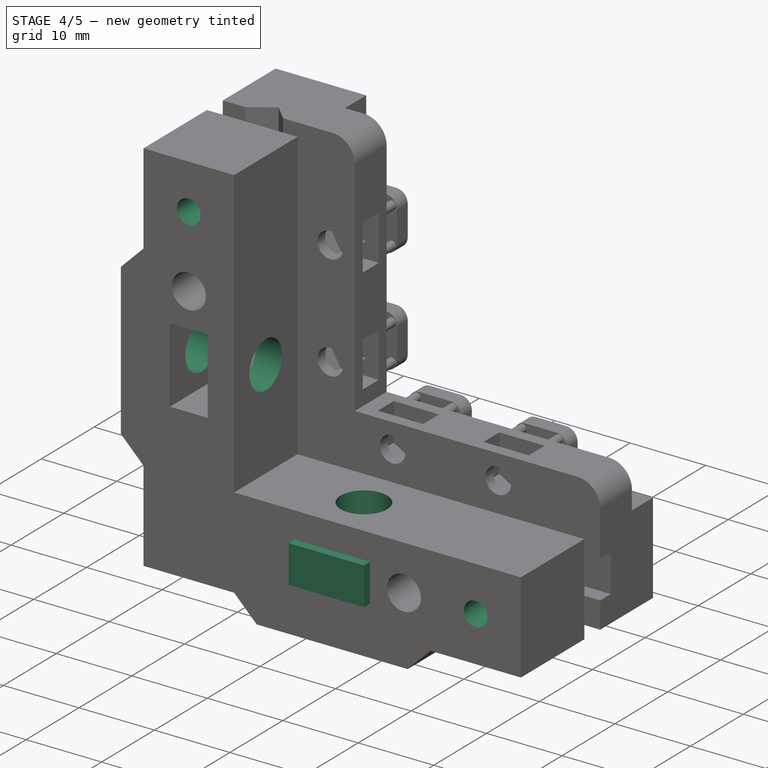
[diagram: stage 4 of 5 — iso view after this stage's code; geometry added in this stage tinted green]
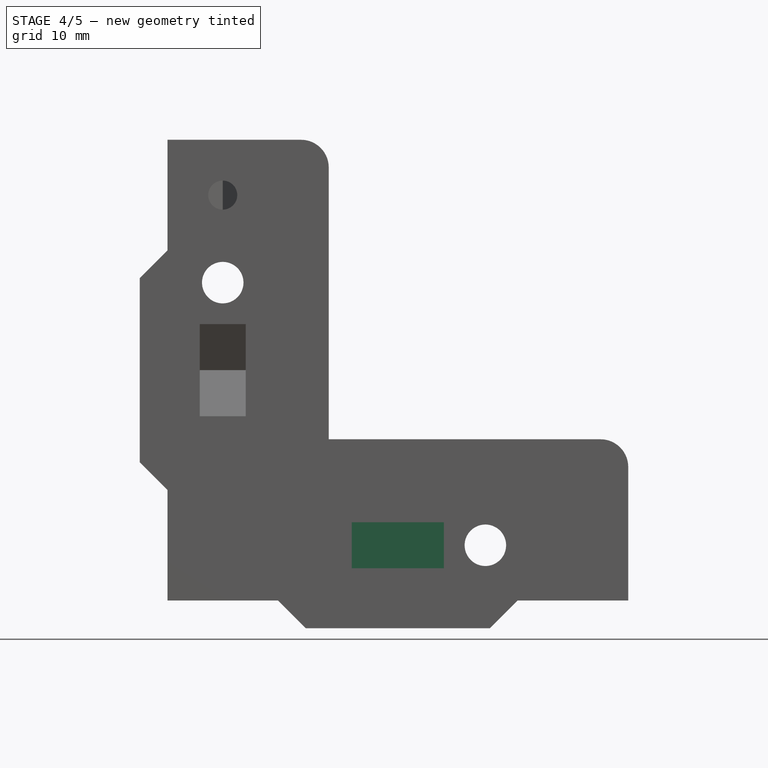
[diagram: stage 4 of 5 — front view after this stage's code; geometry added in this stage tinted green]
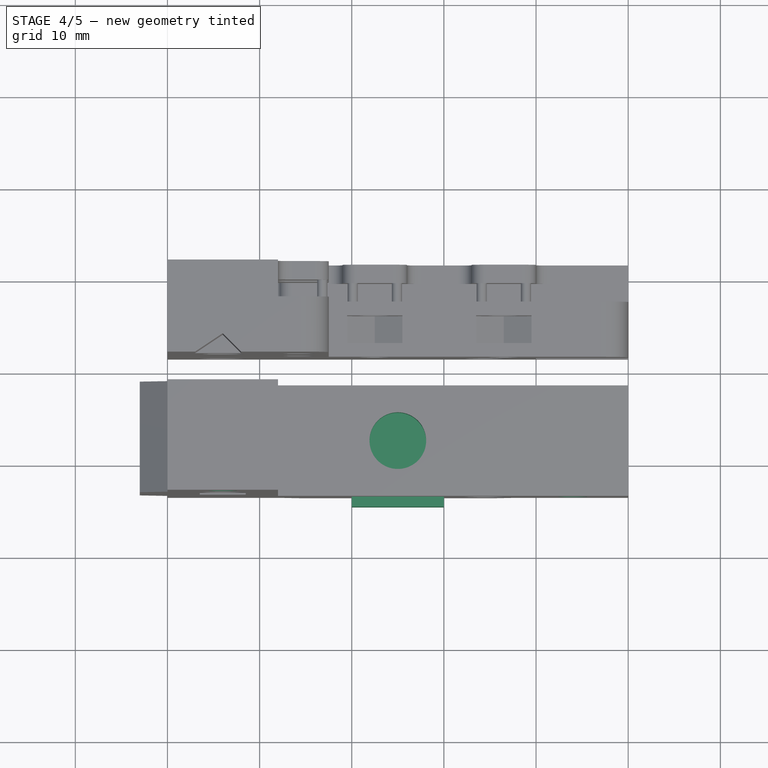
[diagram: stage 4 of 5 — top view after this stage's code; geometry added in this stage tinted green]
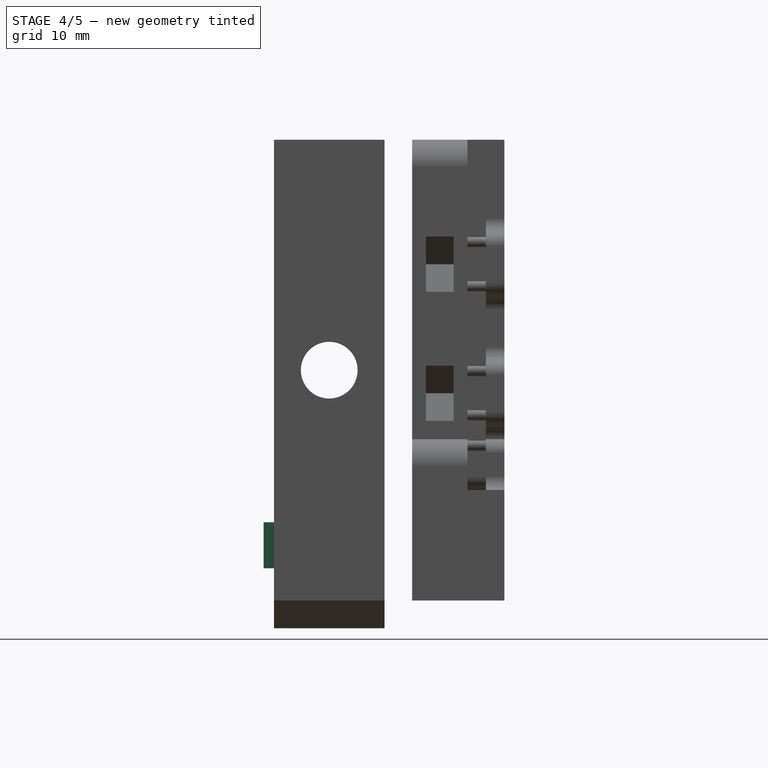
[diagram: stage 4 of 5 — right view after this stage's code; geometry added in this stage tinted green]
FEATURE [Sketcher::SketchObject] Sketch006  label="MountBoltHoleSketch"
  FullyConstrained = true
  MapMode = 5
  Support = -> [XY_Plane]
  expr: Constraints[0] = Spreadsheet.basearmlength / 2
  expr: Constraints[1] = Spreadsheet.partoffset + Spreadsheet.basearmdepth / 2
  expr: Constraints[2] = Spreadsheet.mountboltholediameter
  sketch-geometry (1):
    g0: Circle CenterX=25 CenterY=-7.5 CenterZ=0 NormalX=0 NormalY=0 NormalZ=1 AngleXU=0 Radius=3.075
  constraints (3):
    c: DistanceX(g-1,g0) = 25
    c: DistanceY(g0,g-1) = 7.5
    c: Diameter(g0) = 6.15
FEATURE [PartDesign::Pocket] Pocket002  label="MountBoltHolePocket"
  BaseFeature = -> Pocket
  Direction = (0,0,-1)
  Length = 26
  Length2 = 5
  Midplane = true
  Placement = pos=(0,-1.5,-3e-16) rot=(1,0,0;1.5708rad)
  Profile = -> Sketch006
  ReferenceAxis = -> Sketch006 [N_Axis]
  Refine = true
  Type = 0
FEATURE [Sketcher::SketchObject] Sketch007  label="ThumbscrewHoleSketch"
  ExternalGeometry = -> [Clone2D]
  FullyConstrained = true
  MapMode = 5
  Placement = pos=(0,-1.5,-3e-16) rot=(1,0,0;1.5708rad)
  Support = -> [DatumPlane]
  expr: Constraints[3] = Spreadsheet.thumbscrewholediameter
  sketch-geometry (2):
    g0: Circle CenterX=44 CenterY=6 CenterZ=0 NormalX=0 NormalY=0 NormalZ=1 AngleXU=0 Radius=1.575
    g1: Circle CenterX=6 CenterY=44 CenterZ=0 NormalX=0 NormalY=0 NormalZ=1 AngleXU=0 Radius=1.575
  constraints (4):
    c: Coincident(g0,g-3)
    c: Coincident(g1,g-4)
    c: Equal(g1,g0)
    c: Diameter(g0) = 3.15
FEATURE [PartDesign::Pocket] Pocket003  label="ThumbscrewHolePocket"
  BaseFeature = -> Pocket002
  Direction = (0,1,2e-16)
  Length = 5
  Length2 = 5
  Placement = pos=(0,-1.5,-3e-16) rot=(1,0,0;1.5708rad)
  Profile = -> Sketch007
  ReferenceAxis = -> Sketch007 [N_Axis]
  Refine = true
  Reversed = true
  Type = 1
FEATURE [Sketcher::SketchObject] Sketch009  label="MountBoltHole2Sketch"
  ExternalGeometry = -> [Clone2D]
  FullyConstrained = true
  MapMode = 5
  Placement = pos=(0,0,0) rot=(0.57735,0.57735,0.57735;2.0944rad)
  Support = -> [YZ_Plane]
  expr: Constraints[0] = Spreadsheet.partoffset + Spreadsheet.basearmdepth / 2
  expr: Constraints[1] = Spreadsheet.basearmlength / 2
  expr: Constraints[2] = Spreadsheet.mountboltholediameter
  sketch-geometry (1):
    g0: Circle CenterX=-7.5 CenterY=25 CenterZ=0 NormalX=0 NormalY=0 NormalZ=1 AngleXU=0 Radius=3.075
  constraints (3):
    c: DistanceX(g0,g-3) = 7.5
    c: DistanceY(g-1,g0) = 25
    c: Diameter(g0) = 6.15
FEATURE [PartDesign::Pocket] Pocket005  label="MountBoltHole2Pocket"
  BaseFeature = -> Pocket003
  Direction = (-1,2e-16,-3e-16)
  Length = 5
  Length2 = 5
  Midplane = true
  Placement = pos=(0,-1.5,-3e-16) rot=(1,0,0;1.5708rad)
  Profile = -> Sketch009
  ReferenceAxis = -> Sketch009 [N_Axis]
  Refine = true
  Type = 1
FEATURE [Sketcher::SketchObject] Sketch010
  AttachmentOffset = pos=(0,0,6) rot=(0,0,1;0rad)
  FullyConstrained = true
  MapMode = 5
  Placement = pos=(0,0,6) rot=(0,0,1;0rad)
  Support = -> [XY_Plane003]
  expr: .AttachmentOffset.Base.z = Spreadsheet.basearmheight / 2
  expr: Constraints[4] = Spreadsheet.partoffset + Spreadsheet.basearmdepth / 2
  expr: Constraints[5] = Spreadsheet.basearmlength / 2
  sketch-geometry (6):
    g0: LineSegment StartX=30 StartY=-4.61325 StartZ=0 EndX=25 EndY=-1.7265 EndZ=0
    g1: LineSegment StartX=25 StartY=-1.7265 StartZ=0 EndX=20 EndY=-4.61325 EndZ=0
    g2: Circle CenterX=25 CenterY=-7.5 CenterZ=0 NormalX=0 NormalY=0 NormalZ=1 AngleXU=0 Radius=5.7735
    g3: LineSegment StartX=30 StartY=-14.6132 StartZ=0 EndX=20 EndY=-14.6132 EndZ=0
    g4: LineSegment StartX=30 StartY=-4.61325 StartZ=0 EndX=30 EndY=-14.6132 EndZ=0
    g5: LineSegment StartX=20 StartY=-4.61325 StartZ=0 EndX=20 EndY=-14.6132 EndZ=0
  constraints (18):
    c: Coincident(g0,g1)
    c: PointOnObject(g0,g2)
    c: PointOnObject(g0,g2)
    c: PointOnObject(g1,g2)
    c: DistanceY(g2,g-1) = 7.5
    c: DistanceX(g-1,g2) = 25
    c: Coincident(g4,g0)
    c: Coincident(g4,g3)
    c: Coincident(g5,g1)
    c: Coincident(g5,g3)
    c: Distance(g3,g3) = 10
    c: Angle(g1,g0) = 2.0944
    c: Angle(g0,g4) = 2.0944
    c: Angle(g5,g1) = 2.0944
    c: Equal(g1,g0)
    c: Equal(g4,g5)
    c: Vertical(g5)
    c: Distance(g5) = 10
FEATURE [PartDesign::Pad] Pad003
  Direction = (0,0,1)
  Length = 5
  Length2 = 10
  Midplane = true
  Profile = -> Sketch010
  ReferenceAxis = -> Sketch010 [N_Axis]
  Refine = true
  Type = 0
FEATURE [PartDesign::Body] Body007  label="SetscrewCaptureCutBody"
  Group = -> [Sketch014,Pad007]
  Origin = -> Origin007
  Tip = -> Pad007
FEATURE [PartDesign::Boolean] Boolean001
  BaseFeature = -> Pocket005
  Group = -> [Body004]
  Refine = true
  Type = 1
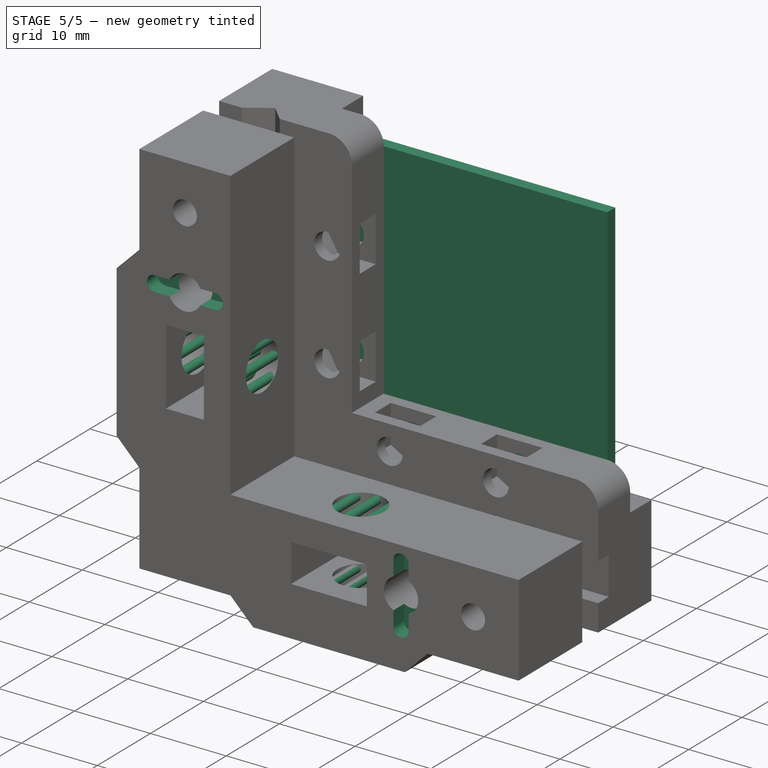
[diagram: stage 5 of 5 — iso view after this stage's code; geometry added in this stage tinted green]
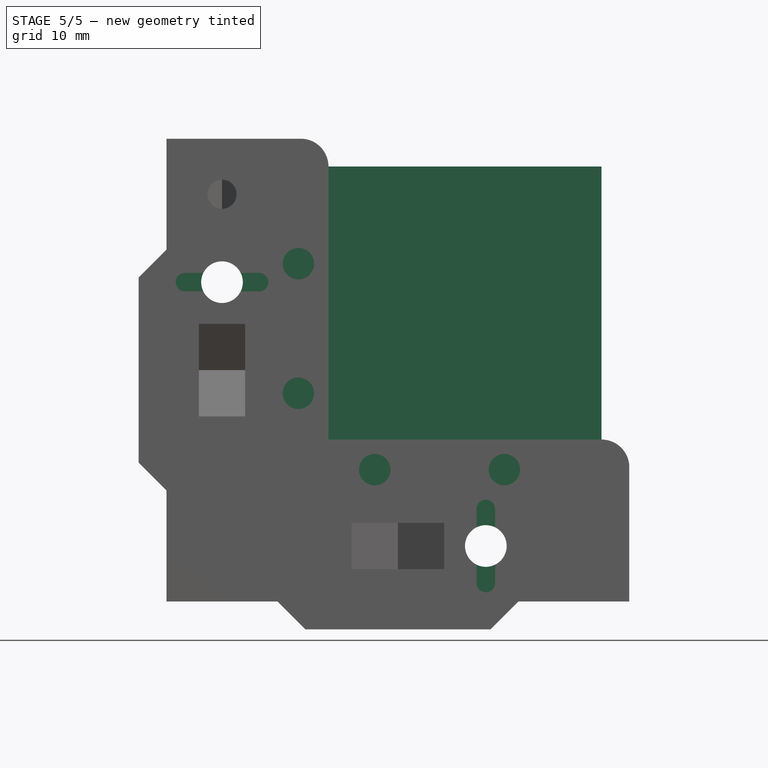
[diagram: stage 5 of 5 — front view after this stage's code; geometry added in this stage tinted green]
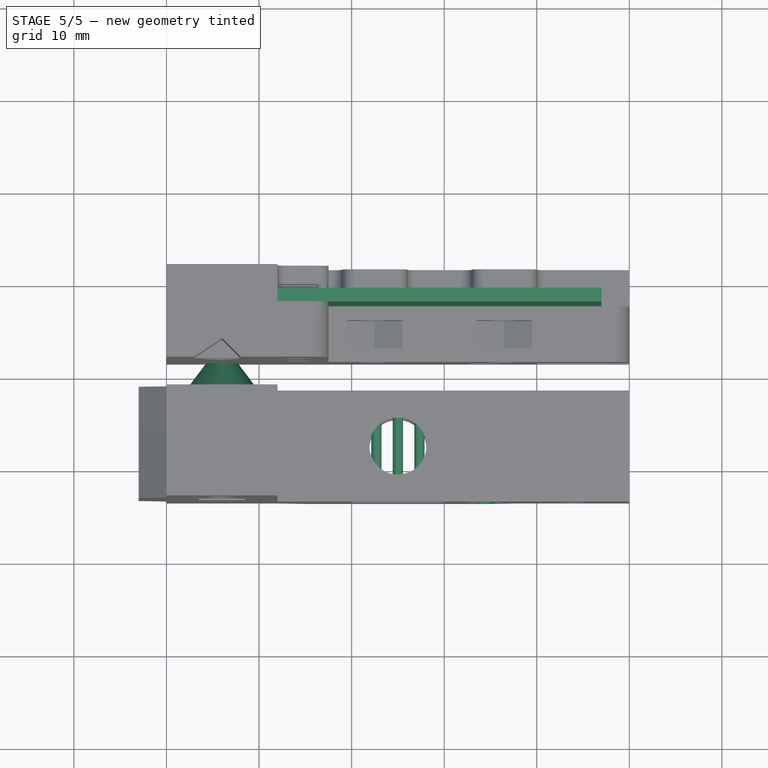
[diagram: stage 5 of 5 — top view after this stage's code; geometry added in this stage tinted green]
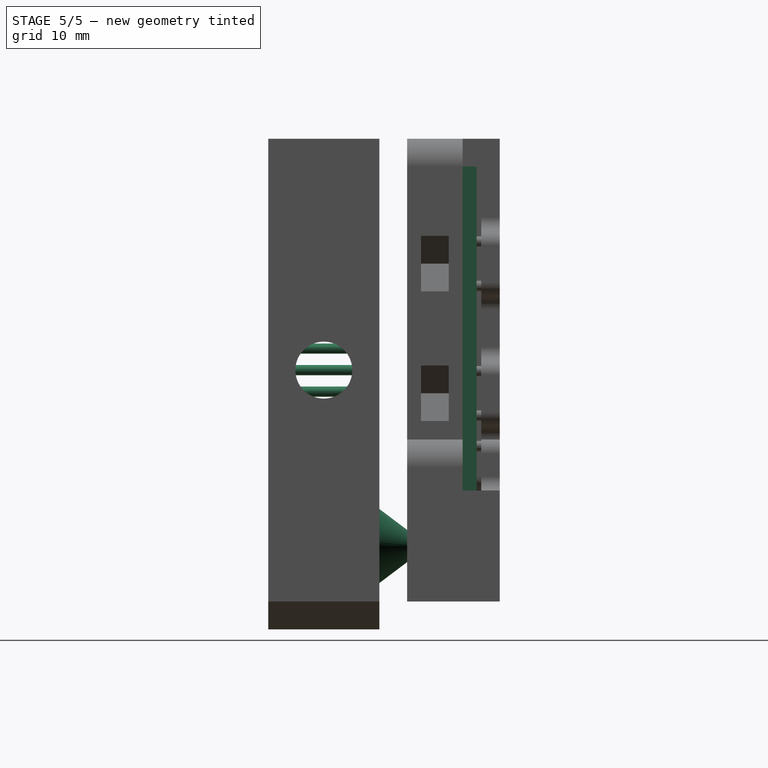
[diagram: stage 5 of 5 — right view after this stage's code; geometry added in this stage tinted green]
FEATURE [Part::Part2DObjectPython] Clone2D001  label="MasterSketch (2D)001"  # Draft 2D object (typed FeaturePython)
  Fuse = false
  Objects = -> [Sketch]
  Placement = pos=(0,0,0) rot=(1,0,0;1.5708rad)
  Scale = (1,1,1)
FEATURE [Sketcher::SketchObject] Sketch002  label="OpticPlaceholderSketch"
  AttachmentOffset = pos=(0,0,-7.5) rot=(0,0,1;0rad)
  ExternalGeometry = -> [Clone2D001]
  FullyConstrained = true
  MapMode = 5
  Placement = pos=(0,7.5,1.7e-15) rot=(1,0,0;1.5708rad)
  Support = -> [XZ_Plane001]
  expr: .AttachmentOffset.Base.z = -Spreadsheet.partoffset - Spreadsheet.opticchanneloffset
  expr: Constraints[10] = Spreadsheet.opticdim2
  sketch-geometry (4):
    g0: LineSegment StartX=12 StartY=47 StartZ=0 EndX=47 EndY=47 EndZ=0
    g1: LineSegment StartX=47 StartY=47 StartZ=0 EndX=47 EndY=12 EndZ=0
    g2: LineSegment StartX=47 StartY=12 StartZ=0 EndX=12 EndY=12 EndZ=0
    g3: LineSegment StartX=12 StartY=12 StartZ=0 EndX=12 EndY=47 EndZ=0
  constraints (12):
    c: Coincident(g0,g1)
    c: Coincident(g1,g2)
    c: Coincident(g2,g3)
    c: Coincident(g3,g0)
    c: Horizontal(g0)
    c: Horizontal(g2)
    c: Vertical(g1)
    c: Vertical(g3)
    c: PointOnObject(g0,g-3)
    c: PointOnObject(g1,g-4)
    c: Distance(g1) = 35
    c: Equal(g1,g0)
FEATURE [PartDesign::Pad] Pad001
  Direction = (0,-1,-2e-16)
  Length = 1.5
  Length2 = 10
  Placement = pos=(0,0,0) rot=(1,0,0;1.5708rad)
  Profile = -> Sketch002
  ReferenceAxis = -> Sketch002 [N_Axis]
  Refine = true
  Reversed = true
  Type = 0
FEATURE [PartDesign::Boolean] Boolean002
  BaseFeature = -> Boolean001
  Group = -> [Body003]
  Refine = true
  Type = 1
FEATURE [Sketcher::SketchObject] Sketch015  label="PivotPointSketch"
  AttachmentOffset = pos=(0,0,1.5) rot=(0,0,1;0rad)
  ExternalGeometry = -> [Clone2D]
  FullyConstrained = true
  MapMode = 5
  Placement = pos=(0,-1.5,-3e-16) rot=(1,0,0;1.5708rad)
  Support = -> [XZ_Plane]
  expr: .AttachmentOffset.Base.z = Spreadsheet.partoffset
  sketch-geometry (1):
    g0: Circle CenterX=6 CenterY=6 CenterZ=0 NormalX=0 NormalY=0 NormalZ=1 AngleXU=0 Radius=4
  constraints (2):
    c: Coincident(g0,g-3)
    c: Diameter(g0) = 8
FEATURE [PartDesign::Pad] Pad008  label="PivotPointPad"
  BaseFeature = -> Boolean002
  Direction = (0,-1,-2e-16)
  Length = 5
  Length2 = 10
  Profile = -> Sketch015
  ReferenceAxis = -> Sketch015 [N_Axis]
  Refine = true
  Reversed = true
  TaperAngle = -37
  Type = 0
FEATURE [Sketcher::SketchObject] Sketch018  label="PinGrooveSketch"
  AttachmentOffset = pos=(0,0,12) rot=(0,0,1;0rad)
  ExternalGeometry = -> [Pad008,Clone2D]
  FullyConstrained = true
  MapMode = 5
  Placement = pos=(0,-13.5,-3e-15) rot=(1,0,0;1.5708rad)
  Support = -> [DatumPlane]
  expr: .AttachmentOffset.Base.z = Spreadsheet.basearmdepth
  sketch-geometry (10):
    g0: LineSegment StartX=34.5 StartY=16 StartZ=0 EndX=34.5 EndY=-4 EndZ=0
    g1: ArcOfCircle CenterX=34.5 CenterY=10 CenterZ=0 NormalX=0 NormalY=0 NormalZ=1 AngleXU=0 Radius=1 StartAngle=-9e-16 EndAngle=3.14159
    g2: ArcOfCircle CenterX=34.5 CenterY=2 CenterZ=0 NormalX=0 NormalY=0 NormalZ=1 AngleXU=0 Radius=1 StartAngle=3.14159 EndAngle=6.28319
    g3: LineSegment StartX=33.5 StartY=10 StartZ=0 EndX=33.5 EndY=2 EndZ=0
    g4: LineSegment StartX=35.5 StartY=2 StartZ=0 EndX=35.5 EndY=10 EndZ=0
    g5: LineSegment StartX=0 StartY=0 StartZ=0 EndX=34.5089 EndY=34.5089 EndZ=0
    g6: ArcOfCircle CenterX=10 CenterY=34.5 CenterZ=0 NormalX=0 NormalY=0 NormalZ=1 AngleXU=0 Radius=1 StartAngle=4.71239 EndAngle=7.85398
    g7: ArcOfCircle CenterX=2 CenterY=34.5 CenterZ=0 NormalX=0 NormalY=0 NormalZ=1 AngleXU=0 Radius=1 StartAngle=1.5708 EndAngle=4.71239
    g8: LineSegment StartX=10 StartY=35.5 StartZ=0 EndX=2 EndY=35.5 EndZ=0
    g9: LineSegment StartX=2 StartY=33.5 StartZ=0 EndX=10 EndY=33.5 EndZ=0
  constraints (23):
    c: Symmetric(g0,g0,g-3)
    c: Tangent(g1,g3) = -1.5708
    c: Tangent(g3,g2) = -1.5708
    c: Tangent(g2,g4) = -1.5708
    c: Tangent(g4,g1) = -1.5708
    c: Equal(g1,g2)
    c: PointOnObject(g1,g0)
    c: Coincident(g5,g-1)
    c: Angle(g-1,g5) = 0.785398
    c: Block(g5)
    c: Tangent(g6,g8) = -1.5708
    c: Tangent(g8,g7) = -1.5708
    c: Tangent(g7,g9) = -1.5708
    c: Tangent(g9,g6) = -1.5708
    c: Equal(g6,g7)
    c: Equal(g1,g6)
    c: Diameter(g1) = 2
    c: Distance(g1,g2) = 8
    c: Distance(g0) = 20
    c: Symmetric(g1,g2,g-3)
    c: Symmetric(g2,g7,g5)
    c: Symmetric(g1,g6,g5)
    c: Vertical(g0)
FEATURE [PartDesign::Pocket] Pocket006  label="PinGroovePocket"
  BaseFeature = -> Pad008
  Direction = (0,1,2e-16)
  Length = 2
  Length2 = 5
  Profile = -> Sketch018
  ReferenceAxis = -> Sketch018 [N_Axis]
  Refine = true
  Type = 0
FEATURE [Sketcher::SketchObject] Sketch020
  AttachmentOffset = pos=(0,0,7.5) rot=(0,0,1;0rad)
  ExternalGeometry = -> [Clone2D]
  FullyConstrained = true
  MapMode = 5
  Placement = pos=(0,-7.5,-1.7e-15) rot=(1,0,0;1.5708rad)
  Support = -> [XZ_Plane]
  expr: .AttachmentOffset.Base.z = Spreadsheet.partoffset + Spreadsheet.basearmdepth / 2
  expr: Constraints[7] = Spreadsheet.mountboltholediameter
  expr: Constraints[8] = Spreadsheet.basearmheight + Spreadsheet.footheight
  sketch-geometry (40):
    g0: LineSegment StartX=21.925 StartY=12 StartZ=0 EndX=28.075 EndY=12 EndZ=0
    g1: LineSegment StartX=28.075 StartY=12 StartZ=0 EndX=28.075 EndY=-3 EndZ=0
    g2: LineSegment StartX=28.075 StartY=-3 StartZ=0 EndX=21.925 EndY=-3 EndZ=0
    g3: LineSegment StartX=21.925 StartY=-3 StartZ=0 EndX=21.925 EndY=12 EndZ=0
    g4: Circle CenterX=27.325 CenterY=11.4 CenterZ=0 NormalX=0 NormalY=0 NormalZ=1 AngleXU=0 Radius=0.55
    g5: LineSegment StartX=-3 StartY=28.075 StartZ=0 EndX=12 EndY=28.075 EndZ=0
    g6: LineSegment StartX=12 StartY=28.075 StartZ=0 EndX=12 EndY=21.925 EndZ=0
    g7: LineSegment StartX=12 StartY=21.925 StartZ=0 EndX=-3 EndY=21.925 EndZ=0
    g8: LineSegment StartX=-3 StartY=21.925 StartZ=0 EndX=-3 EndY=28.075 EndZ=0
    g9: LineSegment StartX=0 StartY=0 StartZ=0 EndX=37.8974 EndY=37.8974 EndZ=0
    g10: Circle CenterX=25 CenterY=11.4 CenterZ=0 NormalX=0 NormalY=0 NormalZ=1 AngleXU=0 Radius=0.55
    g11: Circle CenterX=22.675 CenterY=11.4 CenterZ=0 NormalX=0 NormalY=0 NormalZ=1 AngleXU=0 Radius=0.55
    g12: LineSegment StartX=27.325 StartY=16 StartZ=0 EndX=27.325 EndY=-4 EndZ=0
    g13: Circle CenterX=27.325 CenterY=9.125 CenterZ=0 NormalX=0 NormalY=0 NormalZ=1 AngleXU=0 Radius=0.55
    g14: Circle CenterX=25 CenterY=9.125 CenterZ=0 NormalX=0 NormalY=0 NormalZ=1 AngleXU=0 Radius=0.55
    g15: Circle CenterX=22.675 CenterY=9.125 CenterZ=0 NormalX=0 NormalY=0 NormalZ=1 AngleXU=0 Radius=0.55
    g16: Circle CenterX=27.325 CenterY=2.875 CenterZ=0 NormalX=0 NormalY=0 NormalZ=1 AngleXU=0 Radius=0.55
    g17: Circle CenterX=27.325 CenterY=0 CenterZ=0 NormalX=0 NormalY=0 NormalZ=1 AngleXU=0 Radius=0.55
    g18: Circle CenterX=27.325 CenterY=-2.4 CenterZ=0 NormalX=0 NormalY=0 NormalZ=1 AngleXU=0 Radius=0.55
    g19: Circle CenterX=25 CenterY=2.875 CenterZ=0 NormalX=0 NormalY=0 NormalZ=1 AngleXU=0 Radius=0.55
    g20: Circle CenterX=25 CenterY=0 CenterZ=0 NormalX=0 NormalY=0 NormalZ=1 AngleXU=0 Radius=0.55
    g21: Circle CenterX=25 CenterY=-2.4 CenterZ=0 NormalX=0 NormalY=0 NormalZ=1 AngleXU=0 Radius=0.55
    g22: Circle CenterX=22.675 CenterY=2.875 CenterZ=0 NormalX=0 NormalY=0 NormalZ=1 AngleXU=0 Radius=0.55
    g23: Circle CenterX=22.675 CenterY=0 CenterZ=0 NormalX=0 NormalY=0 NormalZ=1 AngleXU=0 Radius=0.55
    g24: Circle CenterX=22.675 CenterY=-2.4 CenterZ=0 NormalX=0 NormalY=0 NormalZ=1 AngleXU=0 Radius=0.55
    g25: Circle CenterX=-2.4 CenterY=27.325 CenterZ=0 NormalX=0 NormalY=0 NormalZ=1 AngleXU=0 Radius=0.55
    g26: Circle CenterX=-2.4 CenterY=25 CenterZ=0 NormalX=0 NormalY=0 NormalZ=1 AngleXU=0 Radius=0.55
    g27: Circle CenterX=-2.4 CenterY=22.675 CenterZ=0 NormalX=0 NormalY=0 NormalZ=1 AngleXU=0 Radius=0.55
    g28: Circle CenterX=6.4e-15 CenterY=27.325 CenterZ=0 NormalX=0 NormalY=0 NormalZ=1 AngleXU=0 Radius=0.55
    g29: Circle CenterX=6e-15 CenterY=25 CenterZ=0 NormalX=0 NormalY=0 NormalZ=1 AngleXU=0 Radius=0.55
    g30: Circle CenterX=3.6e-15 CenterY=22.675 CenterZ=0 NormalX=0 NormalY=0 NormalZ=1 AngleXU=0 Radius=0.55
    g31: Circle CenterX=2.875 CenterY=27.325 CenterZ=0 NormalX=0 NormalY=0 NormalZ=1 AngleXU=0 Radius=0.55
    g32: Circle CenterX=2.875 CenterY=25 CenterZ=0 NormalX=0 NormalY=0 NormalZ=1 AngleXU=0 Radius=0.55
    g33: Circle CenterX=2.875 CenterY=22.675 CenterZ=0 NormalX=0 NormalY=0 NormalZ=1 AngleXU=0 Radius=0.55
    g34: Circle CenterX=9.125 CenterY=27.325 CenterZ=0 NormalX=0 NormalY=0 NormalZ=1 AngleXU=0 Radius=0.55
    g35: Circle CenterX=11.4 CenterY=27.325 CenterZ=0 NormalX=0 NormalY=0 NormalZ=1 AngleXU=0 Radius=0.55
    g36: Circle CenterX=9.125 CenterY=25 CenterZ=0 NormalX=0 NormalY=0 NormalZ=1 AngleXU=0 Radius=0.55
    g37: Circle CenterX=11.4 CenterY=25 CenterZ=0 NormalX=0 NormalY=0 NormalZ=1 AngleXU=0 Radius=0.55
    g38: Circle CenterX=9.125 CenterY=22.675 CenterZ=0 NormalX=0 NormalY=0 NormalZ=1 AngleXU=0 Radius=0.55
    g39: Circle CenterX=11.4 CenterY=22.675 CenterZ=0 NormalX=0 NormalY=0 NormalZ=1 AngleXU=0 Radius=0.55
  constraints (95):
    c: Coincident(g0,g1)
    c: Coincident(g1,g2)
    c: Coincident(g2,g3)
    c: Coincident(g3,g0)
    c: Horizontal(g2)
    c: Vertical(g1)
    c: Vertical(g3)
    c: Distance(g0) = 6.15
    c: Distance(g1) = 15
    c: Diameter(g4) = 1.1
    c: Coincident(g5,g6)
    c: Coincident(g6,g7)
    c: Coincident(g7,g8)
    c: Coincident(g8,g5)
    c: Horizontal(g5)
    c: Horizontal(g7)
    c: Vertical(g6)
    c: Vertical(g8)
    c: Coincident(g9,g-1)
    c: Angle(g-1,g9) = 0.785398
    c: Block(g9)
    c: Symmetric(g2,g7,g9)
    c: Symmetric(g0,g5,g9)
    c: DistanceY(g4,g0) = 0.6
    c: PointOnObject(g4,g12)
    c: Horizontal(g11,g10)
    c: PointOnObject(g13,g12)
    c: PointOnObject(g17,g12)
    c: PointOnObject(g18,g12)
    c: Vertical(g20,g21)
    c: Equal(g11,g10)
    c: Equal(g10,g4)
    c: Equal(g4,g15)
    c: Equal(g15,g14)
    c: Equal(g14,g13)
    c: Equal(g13,g22)
    c: Equal(g22,g19)
    c: Equal(g19,g16)
    c: Equal(g16,g23)
    c: Equal(g23,g20)
    c: Equal(g20,g17)
    c: Equal(g17,g24)
    c: Equal(g24,g21)
    c: Equal(g21,g18)
    c: DistanceX(g4,g0) = 0.75
    c: Horizontal(g15,g14)
    c: Horizontal(g22,g19)
    c: Horizontal(g23,g20)
    c: Horizontal(g24,g21)
    c: DistanceY(g1,g18) = 0.6
    c: DistanceY(g22,g15) = 6.25
    c: PointOnObject(g10,g-3)
    c: Symmetric(g0,g0,g-3)
    c: Horizontal(g0,g-3)
    c: Symmetric(g11,g4,g-3)
    c: Symmetric(g15,g22,g-4)
    c: PointOnObject(g14,g-3)
    c: Symmetric(g13,g15,g-3)
    c: PointOnObject(g19,g-3)
    c: Coincident(g20,g-3)
    c: Symmetric(g17,g23,g-3)
    c: Symmetric(g18,g24,g-3)
    c: Symmetric(g22,g16,g-3)
    c: Distance(g12) = 20
    c: Symmetric(g12,g12,g-4)
    c: Symmetric(g11,g39,g9)
    c: Symmetric(g37,g10,g9)
    c: Symmetric(g4,g35,g9)
    c: Equal(g4,g35)
    c: Equal(g35,g37)
    c: Equal(g37,g39)
    c: Equal(g39,g34)
    c: Equal(g34,g36)
    c: Equal(g36,g38)
    c: Equal(g38,g31)
    c: Equal(g31,g32)
    c: Equal(g32,g33)
    c: Equal(g33,g28)
    c: Equal(g28,g29)
    c: Equal(g29,g30)
    c: Equal(g30,g25)
    c: Equal(g25,g26)
    c: Equal(g26,g27)
    c: Symmetric(g13,g34,g9)
    c: Symmetric(g14,g36,g9)
    c: Symmetric(g15,g38,g9)
    c: Symmetric(g16,g31,g9)
    c: Symmetric(g19,g32,g9)
    c: Symmetric(g22,g33,g9)
    c: Symmetric(g17,g28,g9)
    c: Symmetric(g20,g29,g9)
    c: Symmetric(g23,g30,g9)
    c: Symmetric(g18,g25,g9)
    c: Symmetric(g21,g26,g9)
    c: Symmetric(g24,g27,g9)
FEATURE [PartDesign::Pad] Pad010
  BaseFeature = -> Pocket006
  Direction = (0,-1,-2e-16)
  Length = 10
  Length2 = 10
  Midplane = true
  Profile = -> Sketch020
  ReferenceAxis = -> Sketch020 [N_Axis]
  Refine = true
  Type = 0
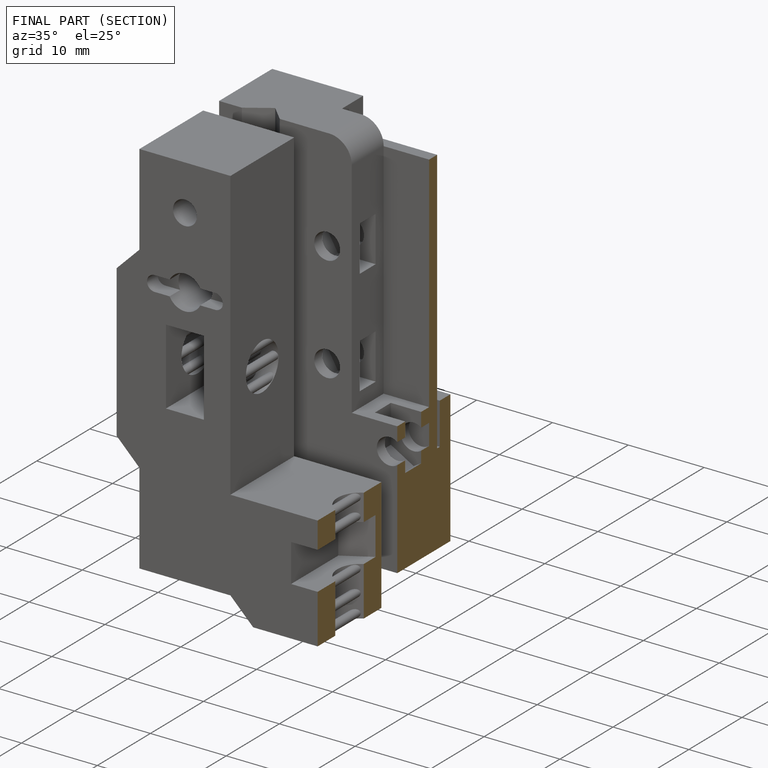
[diagram: finished part — half-section view (interior)]
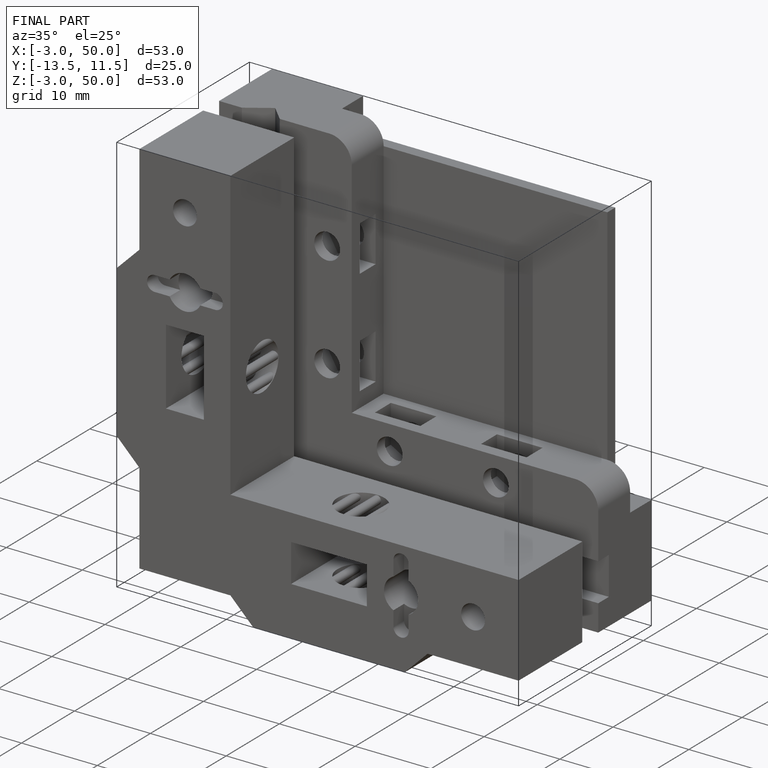
[diagram: finished part — iso view with bounding-box wireframe]
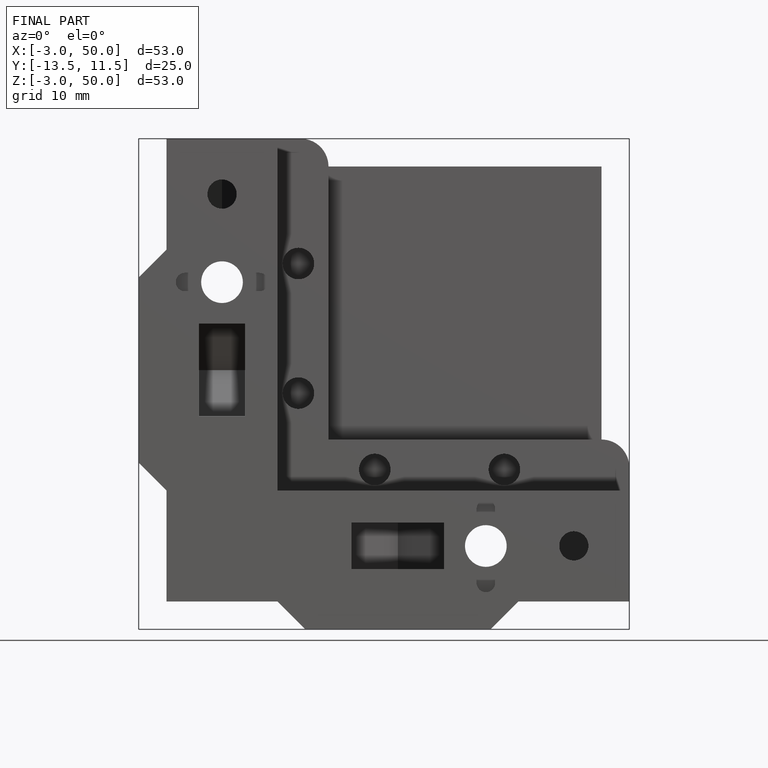
[diagram: finished part — front view with bounding-box wireframe]
